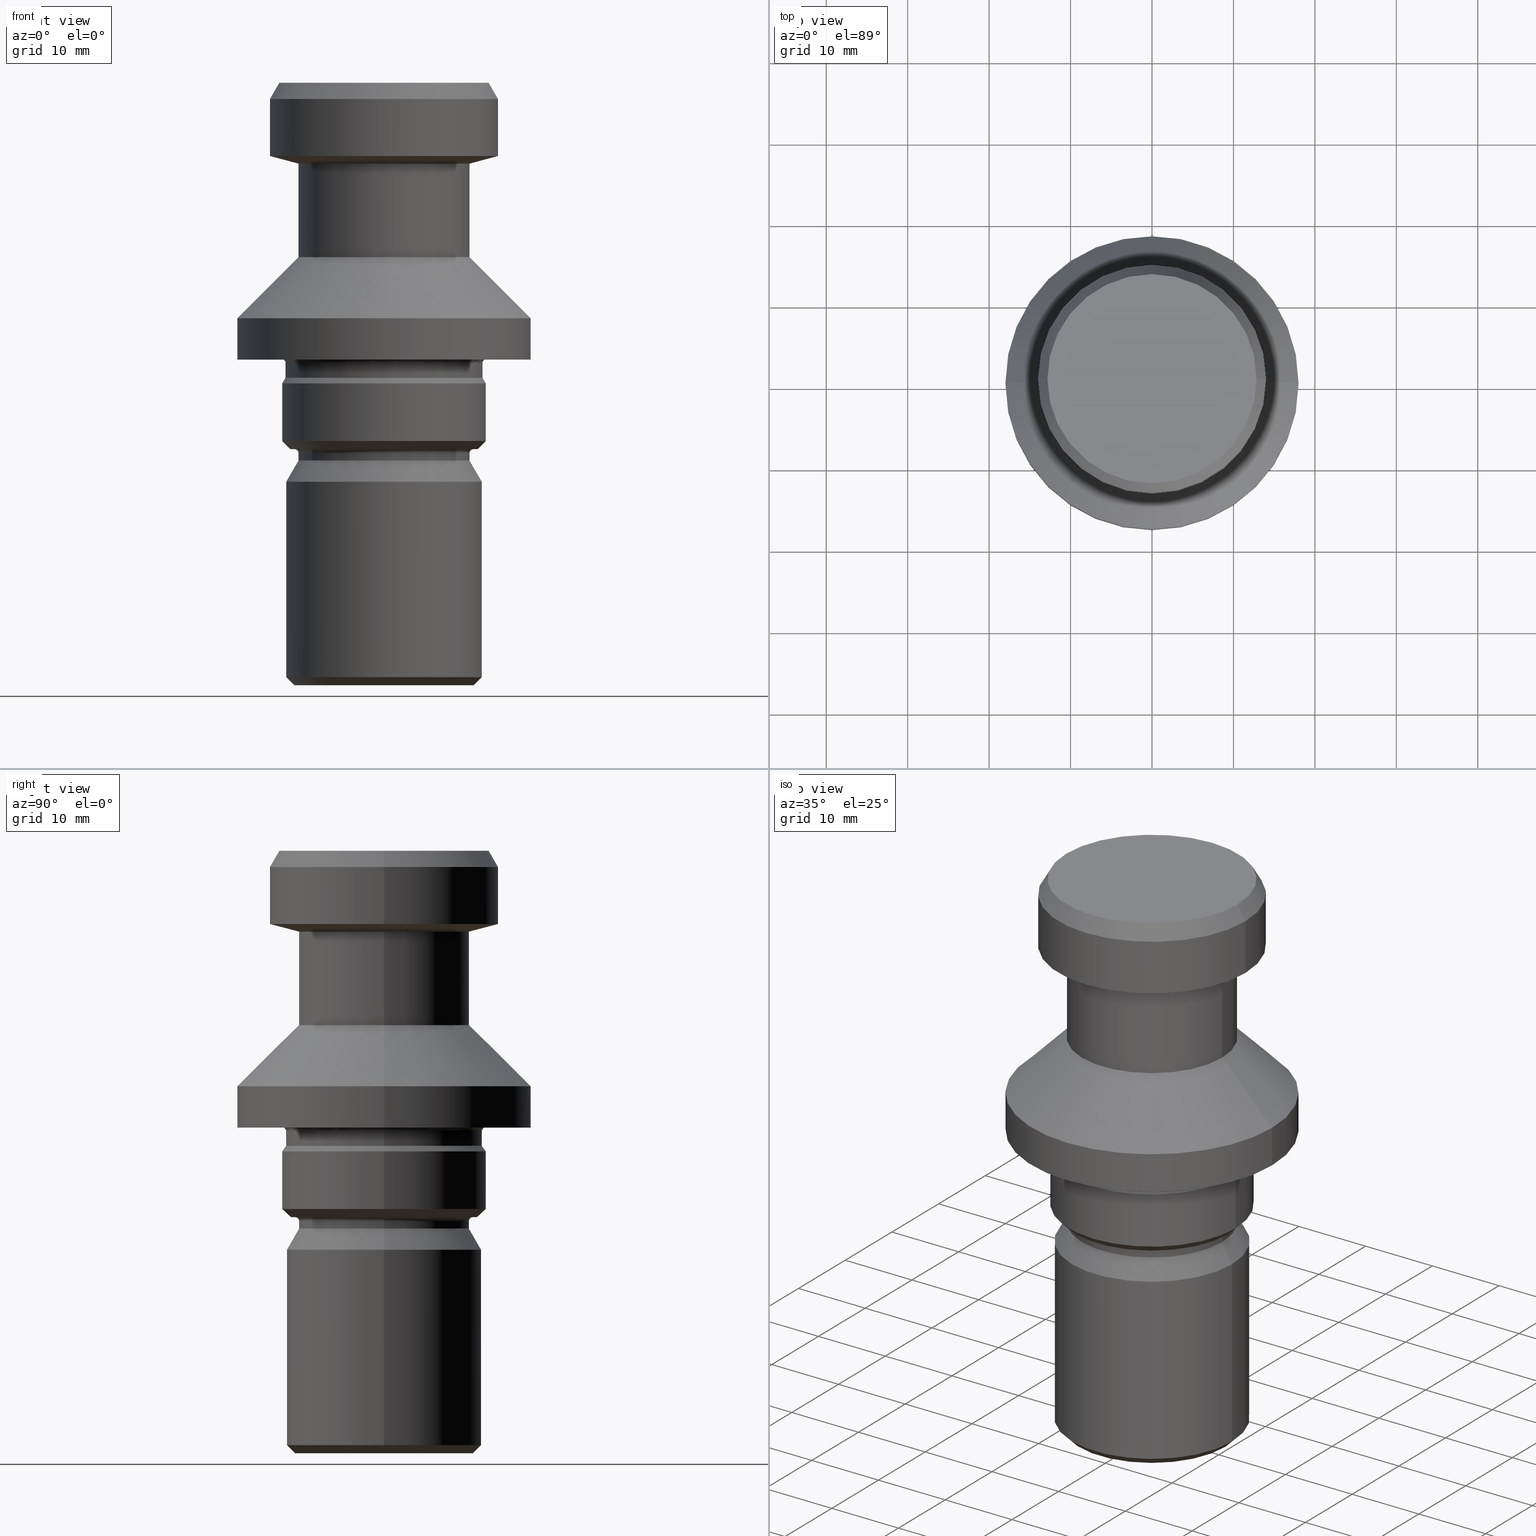
[diagram: canonical four-view strip — front | top / right | iso, engineering-drawing reading convention]
A machine part, canonical four-view strip (front | top / right | iso — engineering-drawing reading convention). The complete STEP part file that produces these views, byte-faithful:
ISO-10303-21;
HEADER;
FILE_DESCRIPTION (( 'STEP AP203' ),
    '1' );
FILE_NAME ('PS SK50 A DIN 69872 TC WITH O RING.STEP',
    '2019-04-08T09:38:23',
    ( '' ),
    ( '' ),
    'SwSTEP 2.0',
    'SolidWorks 2014',
    '' );
FILE_SCHEMA (( 'CONFIG_CONTROL_DESIGN' ));
ENDSEC;

DATA;
#1 = PERSON_AND_ORGANIZATION ( #117, #751 ) ;
#2 = LINE ( 'NONE', #312, #795 ) ;
#3 = EDGE_CURVE ( 'NONE', #123, #745, #846, .T. ) ;
#4 = DIRECTION ( 'NONE',  ( 1.000000000000000000, 0.0000000000000000000, 0.0000000000000000000 ) ) ;
#5 = FACE_OUTER_BOUND ( 'NONE', #391, .T. ) ;
#6 = ORIENTED_EDGE ( 'NONE', *, *, #286, .F. ) ;
#7 = FACE_OUTER_BOUND ( 'NONE', #711, .T. ) ;
#8 = AXIS2_PLACEMENT_3D ( 'NONE', #575, #462, #419 ) ;
#9 = AXIS2_PLACEMENT_3D ( 'NONE', #449, #397, #746 ) ;
#10 = DIRECTION ( 'NONE',  ( 1.000000000000000000, 0.0000000000000000000, 0.0000000000000000000 ) ) ;
#11 = DIRECTION ( 'NONE',  ( 1.000000000000000000, 0.0000000000000000000, 0.0000000000000000000 ) ) ;
#12 = ORIENTED_EDGE ( 'NONE', *, *, #509, .F. ) ;
#13 = ORIENTED_EDGE ( 'NONE', *, *, #642, .T. ) ;
#14 = AXIS2_PLACEMENT_3D ( 'NONE', #903, #915, #891 ) ;
#15 = ORIENTED_EDGE ( 'NONE', *, *, #665, .F. ) ;
#16 = ORIENTED_EDGE ( 'NONE', *, *, #392, .F. ) ;
#17 = DIRECTION ( 'NONE',  ( 1.000000000000000000, 0.0000000000000000000, 0.0000000000000000000 ) ) ;
#18 = ORIENTED_EDGE ( 'NONE', *, *, #239, .F. ) ;
#19 = VECTOR ( 'NONE', #54, 1000.000000000000100 ) ;
#20 = DIRECTION ( 'NONE',  ( -0.0000000000000000000, -0.0000000000000000000, 1.000000000000000000 ) ) ;
#21 = DIRECTION ( 'NONE',  ( 0.0000000000000000000, -0.0000000000000000000, 1.000000000000000000 ) ) ;
#22 = PERSON_AND_ORGANIZATION ( #117, #751 ) ;
#23 = AXIS2_PLACEMENT_3D ( 'NONE', #186, #523, #725 ) ;
#24 = VECTOR ( 'NONE', #624, 1000.000000000000000 ) ;
#25 = CARTESIAN_POINT ( 'NONE',  ( 0.0000000000000000000, 0.0000000000000000000, -9.937822173508905600 ) ) ;
#26 = EDGE_CURVE ( 'NONE', #1029, #157, #423, .T. ) ;
#27 = ORIENTED_EDGE ( 'NONE', *, *, #392, .T. ) ;
#28 = LINE ( 'NONE', #687, #245 ) ;
#29 = CYLINDRICAL_SURFACE ( 'NONE', #386, 10.50000000000000200 ) ;
#30 = DIRECTION ( 'NONE',  ( 1.000000000000000000, 0.0000000000000000000, 0.0000000000000000000 ) ) ;
#31 = CARTESIAN_POINT ( 'NONE',  ( 10.50000000000000200, 0.0000000000000000000, 0.0000000000000000000 ) ) ;
#32 = APPROVAL_ROLE ( '' ) ;
#33 = EDGE_CURVE ( 'NONE', #952, #247, #643, .T. ) ;
#34 = PRODUCT_RELATED_PRODUCT_CATEGORY ( 'detail', '', ( #890 ) ) ;
#35 = CARTESIAN_POINT ( 'NONE',  ( 0.0000000000000000000, 0.0000000000000000000, -28.92000000000000200 ) ) ;
#36 = VERTEX_POINT ( 'NONE', #645 ) ;
#37 = VECTOR ( 'NONE', #233, 999.9999999999998900 ) ;
#38 = AXIS2_PLACEMENT_3D ( 'NONE', #381, #938, #960 ) ;
#39 = EDGE_LOOP ( 'NONE', ( #844, #743 ) ) ;
#40 = VECTOR ( 'NONE', #689, 1000.000000000000000 ) ;
#41 = AXIS2_PLACEMENT_3D ( 'NONE', #763, #80, #156 ) ;
#42 = DIRECTION ( 'NONE',  ( -0.0000000000000000000, -0.0000000000000000000, 1.000000000000000000 ) ) ;
#43 = APPROVAL_ROLE ( '' ) ;
#44 = CALENDAR_DATE ( 2019, 8, 4 ) ;
#45 = LINE ( 'NONE', #226, #438 ) ;
#46 = ORIENTED_EDGE ( 'NONE', *, *, #296, .F. ) ;
#47 = DIRECTION ( 'NONE',  ( 1.000000000000000000, 0.0000000000000000000, 0.0000000000000000000 ) ) ;
#48 = DIRECTION ( 'NONE',  ( 1.000000000000000000, 0.0000000000000000000, 0.0000000000000000000 ) ) ;
#49 = ORIENTED_EDGE ( 'NONE', *, *, #564, .F. ) ;
#50 = ORIENTED_EDGE ( 'NONE', *, *, #967, .F. ) ;
#51 = CIRCLE ( 'NONE', #242, 12.10000000000000300 ) ;
#52 = ORIENTED_EDGE ( 'NONE', *, *, #1015, .F. ) ;
#53 = DIRECTION ( 'NONE',  ( -0.0000000000000000000, -0.0000000000000000000, 1.000000000000000000 ) ) ;
#54 = DIRECTION ( 'NONE',  ( 0.9659258262890677600, 1.182917971378669100E-016, -0.2588190451025224600 ) ) ;
#55 = AXIS2_PLACEMENT_3D ( 'NONE', #926, #95, #426 ) ;
#56 = DIRECTION ( 'NONE',  ( 0.0000000000000000000, 0.0000000000000000000, -1.000000000000000000 ) ) ;
#57 = AXIS2_PLACEMENT_3D ( 'NONE', #170, #21, #895 ) ;
#58 = ADVANCED_FACE ( 'NONE', ( #7 ), #1016, .T. ) ;
#59 = ORIENTED_EDGE ( 'NONE', *, *, #986, .T. ) ;
#60 = LINE ( 'NONE', #882, #37 ) ;
#61 = DIRECTION ( 'NONE',  ( -0.0000000000000000000, -0.0000000000000000000, 1.000000000000000000 ) ) ;
#62 = ORIENTED_EDGE ( 'NONE', *, *, #822, .T. ) ;
#63 = AXIS2_PLACEMENT_3D ( 'NONE', #853, #833, #927 ) ;
#64 = ADVANCED_FACE ( 'NONE', ( #403 ), #29, .T. ) ;
#65 = DIRECTION ( 'NONE',  ( -0.0000000000000000000, -0.0000000000000000000, 1.000000000000000000 ) ) ;
#66 = CIRCLE ( 'NONE', #750, 12.00000000000000000 ) ;
#67 = CARTESIAN_POINT ( 'NONE',  ( 12.00000000000000000, 0.0000000000000000000, -49.00000000000000700 ) ) ;
#68 = CARTESIAN_POINT ( 'NONE',  ( 0.0000000000000000000, 0.0000000000000000000, -44.00000000000000700 ) ) ;
#69 = CARTESIAN_POINT ( 'NONE',  ( 0.0000000000000000000, 0.0000000000000000000, -9.937822173508905600 ) ) ;
#70 = CARTESIAN_POINT ( 'NONE',  ( 0.0000000000000000000, 0.0000000000000000000, 0.0000000000000000000 ) ) ;
#71 = ADVANCED_FACE ( 'NONE', ( #194 ), #615, .F. ) ;
#72 = DIRECTION ( 'NONE',  ( -0.9659258262890677600, 0.0000000000000000000, -0.2588190451025224600 ) ) ;
#73 = DATE_AND_TIME ( #287, #494 ) ;
#74 = FACE_OUTER_BOUND ( 'NONE', #806, .T. ) ;
#75 = CARTESIAN_POINT ( 'NONE',  ( -10.50000000000000000, 1.285879139104720800E-015, -9.937822173508905600 ) ) ;
#76 = ORIENTED_EDGE ( 'NONE', *, *, #905, .F. ) ;
#77 = CIRCLE ( 'NONE', #835, 12.10000000000000300 ) ;
#78 = EDGE_LOOP ( 'NONE', ( #829, #128, #898, #367 ) ) ;
#79 = ORIENTED_EDGE ( 'NONE', *, *, #566, .F. ) ;
#80 = DIRECTION ( 'NONE',  ( 0.0000000000000000000, 0.0000000000000000000, -1.000000000000000000 ) ) ;
#81 = ORIENTED_EDGE ( 'NONE', *, *, #866, .F. ) ;
#82 = DIRECTION ( 'NONE',  ( 0.5000000000000001100, 6.123233995736767300E-017, -0.8660254037844386000 ) ) ;
#83 = EDGE_CURVE ( 'NONE', #279, #581, #217, .T. ) ;
#84 = AXIS2_PLACEMENT_3D ( 'NONE', #25, #873, #784 ) ;
#85 = DIRECTION ( 'NONE',  ( -0.0000000000000000000, -0.0000000000000000000, 1.000000000000000000 ) ) ;
#86 = CONICAL_SURFACE ( 'NONE', #803, 12.50000000000000000, 0.5235987755983012600 ) ;
#87 = ORIENTED_EDGE ( 'NONE', *, *, #935, .F. ) ;
#88 = CYLINDRICAL_SURFACE ( 'NONE', #160, 12.10000000000000300 ) ;
#89 = CARTESIAN_POINT ( 'NONE',  ( 0.0000000000000000000, 0.0000000000000000000, -34.00000000000000000 ) ) ;
#90 = VECTOR ( 'NONE', #72, 1000.000000000000100 ) ;
#91 = EDGE_CURVE ( 'NONE', #786, #603, #801, .T. ) ;
#92 = DIRECTION ( 'NONE',  ( -0.0000000000000000000, -0.0000000000000000000, 1.000000000000000000 ) ) ;
#93 = CARTESIAN_POINT ( 'NONE',  ( 0.0000000000000000000, 0.0000000000000000000, -49.00000000000000700 ) ) ;
#94 = ORIENTED_EDGE ( 'NONE', *, *, #847, .T. ) ;
#95 = DIRECTION ( 'NONE',  ( -0.0000000000000000000, -0.0000000000000000000, 1.000000000000000000 ) ) ;
#96 = APPROVAL_DATE_TIME ( #316, #324 ) ;
#97 = VECTOR ( 'NONE', #727, 999.9999999999998900 ) ;
#98 = CARTESIAN_POINT ( 'NONE',  ( 18.00000000000000000, 0.0000000000000000000, -28.92000000000000200 ) ) ;
#99 = CARTESIAN_POINT ( 'NONE',  ( 0.0000000000000000000, 0.0000000000000000000, -28.92000000000000200 ) ) ;
#100 = DIRECTION ( 'NONE',  ( 0.0000000000000000000, 0.0000000000000000000, 1.000000000000000000 ) ) ;
#101 = ORIENTED_EDGE ( 'NONE', *, *, #826, .F. ) ;
#102 = CIRCLE ( 'NONE', #261, 12.00000000000000000 ) ;
#103 = ORIENTED_EDGE ( 'NONE', *, *, #791, .F. ) ;
#104 = ORIENTED_EDGE ( 'NONE', *, *, #957, .T. ) ;
#105 = AXIS2_PLACEMENT_3D ( 'NONE', #108, #524, #141 ) ;
#106 = CARTESIAN_POINT ( 'NONE',  ( -11.00000000000000000, 1.408343819019456200E-015, -74.00000000000000000 ) ) ;
#107 = PERSON_AND_ORGANIZATION_ROLE ( 'design_owner' ) ;
#108 = CARTESIAN_POINT ( 'NONE',  ( 0.0000000000000000000, 0.0000000000000000000, -45.00000000000004300 ) ) ;
#109 = CARTESIAN_POINT ( 'NONE',  ( 12.10000000000000100, 1.506315562951244600E-015, -36.23717967697246000 ) ) ;
#110 = AXIS2_PLACEMENT_3D ( 'NONE', #483, #20, #863 ) ;
#111 = CIRCLE ( 'NONE', #857, 10.50000000000000000 ) ;
#112 = AXIS2_PLACEMENT_3D ( 'NONE', #738, #132, #463 ) ;
#113 = CIRCLE ( 'NONE', #550, 12.50000000000000000 ) ;
#114 = ORIENTED_EDGE ( 'NONE', *, *, #736, .T. ) ;
#115 = CIRCLE ( 'NONE', #112, 11.50000000000000000 ) ;
#116 = AXIS2_PLACEMENT_3D ( 'NONE', #268, #544, #507 ) ;
#117 = PERSON ( 'UNSPECIFIED', 'UNSPECIFIED', 'UNSPECIFIED', ('UNSPECIFIED'), ('UNSPECIFIED'), ('UNSPECIFIED') ) ;
#118 = CARTESIAN_POINT ( 'NONE',  ( -11.00000000000000200, 1.347111479062088600E-015, -45.00000000000004300 ) ) ;
#119 = EDGE_LOOP ( 'NONE', ( #770, #62, #548, #150 ) ) ;
#120 = APPROVAL_PERSON_ORGANIZATION ( #338, #324, #758 ) ;
#121 = CIRCLE ( 'NONE', #55, 13.23000000000000200 ) ;
#122 = LINE ( 'NONE', #129, #959 ) ;
#123 = VERTEX_POINT ( 'NONE', #1022 ) ;
#124 = ORIENTED_EDGE ( 'NONE', *, *, #266, .T. ) ;
#125 = PLANE ( 'NONE',  #38 ) ;
#126 = AXIS2_PLACEMENT_3D ( 'NONE', #199, #700, #290 ) ;
#127 = CARTESIAN_POINT ( 'NONE',  ( 0.0000000000000000000, 0.0000000000000000000, 0.0000000000000000000 ) ) ;
#128 = ORIENTED_EDGE ( 'NONE', *, *, #323, .T. ) ;
#129 = CARTESIAN_POINT ( 'NONE',  ( -12.00000000000000000, 1.469576158976823900E-015, 0.0000000000000000000 ) ) ;
#130 = CARTESIAN_POINT ( 'NONE',  ( 0.0000000000000000000, 0.0000000000000000000, -9.000000000000003600 ) ) ;
#131 = PRODUCT_DEFINITION_SHAPE ( 'NONE', 'NONE',  #270 ) ;
#132 = DIRECTION ( 'NONE',  ( -0.0000000000000000000, -0.0000000000000000000, 1.000000000000000000 ) ) ;
#133 = CIRCLE ( 'NONE', #649, 14.00000000000000000 ) ;
#134 = AXIS2_PLACEMENT_3D ( 'NONE', #368, #363, #934 ) ;
#135 = DIRECTION ( 'NONE',  ( -0.0000000000000000000, -0.0000000000000000000, 1.000000000000000000 ) ) ;
#136 = ORIENTED_EDGE ( 'NONE', *, *, #299, .F. ) ;
#137 = VERTEX_POINT ( 'NONE', #721 ) ;
#138 = VECTOR ( 'NONE', #220, 999.9999999999998900 ) ;
#139 = ORIENTED_EDGE ( 'NONE', *, *, #191, .F. ) ;
#140 = CIRCLE ( 'NONE', #331, 12.84529946162074400 ) ;
#141 = DIRECTION ( 'NONE',  ( 1.000000000000000000, 0.0000000000000000000, 0.0000000000000000000 ) ) ;
#142 = DIRECTION ( 'NONE',  ( -0.0000000000000000000, -0.0000000000000000000, 1.000000000000000000 ) ) ;
#143 = ADVANCED_FACE ( 'NONE', ( #988, #377 ), #765, .F. ) ;
#144 = DIRECTION ( 'NONE',  ( 0.5000000000000021100, 6.123233995736791900E-017, -0.8660254037844374900 ) ) ;
#145 = CARTESIAN_POINT ( 'NONE',  ( -14.00000000000000200, 1.714505518806294800E-015, -9.000000000000003600 ) ) ;
#146 = DIRECTION ( 'NONE',  ( -0.0000000000000000000, -0.0000000000000000000, 1.000000000000000000 ) ) ;
#147 = ADVANCED_FACE ( 'NONE', ( #771 ), #973, .T. ) ;
#148 = CARTESIAN_POINT ( 'NONE',  ( -11.00000000000000000, 1.347111479062088400E-015, -74.00000000000000000 ) ) ;
#149 = DIRECTION ( 'NONE',  ( -1.000000000000000000, 0.0000000000000000000, 0.0000000000000000000 ) ) ;
#150 = ORIENTED_EDGE ( 'NONE', *, *, #266, .F. ) ;
#151 = ORIENTED_EDGE ( 'NONE', *, *, #318, .T. ) ;
#152 = CIRCLE ( 'NONE', #105, 11.00000000000000200 ) ;
#153 = ADVANCED_FACE ( 'NONE', ( #571 ), #539, .T. ) ;
#154 = DIRECTION ( 'NONE',  ( 1.000000000000000000, 0.0000000000000000000, 0.0000000000000000000 ) ) ;
#155 = ORIENTED_EDGE ( 'NONE', *, *, #838, .F. ) ;
#156 = DIRECTION ( 'NONE',  ( -1.000000000000000000, 0.0000000000000000000, 0.0000000000000000000 ) ) ;
#157 = VERTEX_POINT ( 'NONE', #209 ) ;
#158 = EDGE_CURVE ( 'NONE', #1036, #157, #356, .T. ) ;
#159 = ORIENTED_EDGE ( 'NONE', *, *, #244, .T. ) ;
#160 = AXIS2_PLACEMENT_3D ( 'NONE', #1021, #163, #370 ) ;
#161 = DIRECTION ( 'NONE',  ( 1.000000000000000000, 0.0000000000000000000, 0.0000000000000000000 ) ) ;
#162 = CIRCLE ( 'NONE', #436, 18.00000000000000000 ) ;
#163 = DIRECTION ( 'NONE',  ( -0.0000000000000000000, -0.0000000000000000000, 1.000000000000000000 ) ) ;
#164 = DIRECTION ( 'NONE',  ( 1.000000000000000000, 0.0000000000000000000, 0.0000000000000000000 ) ) ;
#165 = ORIENTED_EDGE ( 'NONE', *, *, #965, .T. ) ;
#166 = CONICAL_SURFACE ( 'NONE', #250, 14.00000000000000000, 0.5235987755983005900 ) ;
#167 = AXIS2_PLACEMENT_3D ( 'NONE', #886, #467, #531 ) ;
#168 = VECTOR ( 'NONE', #766, 999.9999999999998900 ) ;
#169 = AXIS2_PLACEMENT_3D ( 'NONE', #218, #701, #210 ) ;
#170 = CARTESIAN_POINT ( 'NONE',  ( 0.0000000000000000000, 11.50000000000000000, -45.00000000000004300 ) ) ;
#171 = CARTESIAN_POINT ( 'NONE',  ( 0.0000000000000000000, 0.0000000000000000000, -36.23717967697246000 ) ) ;
#172 = ORIENTED_EDGE ( 'NONE', *, *, #459, .T. ) ;
#173 = AXIS2_PLACEMENT_3D ( 'NONE', #295, #493, #305 ) ;
#174 = ORIENTED_EDGE ( 'NONE', *, *, #838, .T. ) ;
#175 = EDGE_CURVE ( 'NONE', #614, #563, #747, .T. ) ;
#176 = DIRECTION ( 'NONE',  ( -0.0000000000000000000, -0.0000000000000000000, 1.000000000000000000 ) ) ;
#177 = ORIENTED_EDGE ( 'NONE', *, *, #225, .F. ) ;
#178 = DIRECTION ( 'NONE',  ( -0.0000000000000000000, -0.0000000000000000000, 1.000000000000000000 ) ) ;
#179 = VERTEX_POINT ( 'NONE', #647 ) ;
#180 = CYLINDRICAL_SURFACE ( 'NONE', #361, 10.50000000000000000 ) ;
#181 = CARTESIAN_POINT ( 'NONE',  ( 0.0000000000000000000, 0.0000000000000000000, 0.0000000000000000000 ) ) ;
#182 = ORIENTED_EDGE ( 'NONE', *, *, #907, .F. ) ;
#183 = AXIS2_PLACEMENT_3D ( 'NONE', #206, #346, #680 ) ;
#184 = CARTESIAN_POINT ( 'NONE',  ( 0.0000000000000000000, 0.0000000000000000000, -2.000000000000000000 ) ) ;
#185 = DATE_TIME_ROLE ( 'classification_date' ) ;
#186 = CARTESIAN_POINT ( 'NONE',  ( 0.0000000000000000000, 0.0000000000000000000, -34.34883009897343000 ) ) ;
#187 = EDGE_CURVE ( 'NONE', #786, #336, #115, .T. ) ;
#188 = ORIENTED_EDGE ( 'NONE', *, *, #767, .F. ) ;
#189 = PERSON_AND_ORGANIZATION_ROLE ( 'creator' ) ;
#190 = CALENDAR_DATE ( 2019, 8, 4 ) ;
#191 = EDGE_CURVE ( 'NONE', #202, #511, #140, .T. ) ;
#192 = VECTOR ( 'NONE', #82, 1000.000000000000000 ) ;
#193 = VECTOR ( 'NONE', #313, 1000.000000000000000 ) ;
#194 = FACE_OUTER_BOUND ( 'NONE', #450, .T. ) ;
#195 = EDGE_CURVE ( 'NONE', #500, #754, #943, .T. ) ;
#196 = AXIS2_PLACEMENT_3D ( 'NONE', #414, #852, #823 ) ;
#197 = CARTESIAN_POINT ( 'NONE',  ( 0.0000000000000000000, 0.0000000000000000000, -36.93000000000000700 ) ) ;
#198 = ORIENTED_EDGE ( 'NONE', *, *, #879, .F. ) ;
#199 = CARTESIAN_POINT ( 'NONE',  ( 0.0000000000000000000, 0.0000000000000000000, -74.00000000000000000 ) ) ;
#200 = CONICAL_SURFACE ( 'NONE', #775, 12.72940952255126300, 1.308996938995745400 ) ;
#201 = VERTEX_POINT ( 'NONE', #530 ) ;
#202 = VERTEX_POINT ( 'NONE', #259 ) ;
#203 = FACE_OUTER_BOUND ( 'NONE', #492, .T. ) ;
#204 = AXIS2_PLACEMENT_3D ( 'NONE', #880, #214, #559 ) ;
#205 = ORIENTED_EDGE ( 'NONE', *, *, #883, .T. ) ;
#206 = CARTESIAN_POINT ( 'NONE',  ( 0.0000000000000000000, 0.0000000000000000000, 0.0000000000000000000 ) ) ;
#207 = DATE_AND_TIME ( #417, #636 ) ;
#208 = FACE_OUTER_BOUND ( 'NONE', #928, .T. ) ;
#209 = CARTESIAN_POINT ( 'NONE',  ( -12.10000000000000300, 1.481822626968297700E-015, -34.34883009897343700 ) ) ;
#210 = DIRECTION ( 'NONE',  ( 1.000000000000000000, 0.0000000000000000000, 0.0000000000000000000 ) ) ;
#211 = AXIS2_PLACEMENT_3D ( 'NONE', #914, #100, #284 ) ;
#212 = ORIENTED_EDGE ( 'NONE', *, *, #944, .F. ) ;
#213 = VECTOR ( 'NONE', #837, 999.9999999999998900 ) ;
#214 = DIRECTION ( 'NONE',  ( -0.0000000000000000000, -0.0000000000000000000, 1.000000000000000000 ) ) ;
#215 = DIRECTION ( 'NONE',  ( -0.0000000000000000000, -0.0000000000000000000, 1.000000000000000000 ) ) ;
#216 = VERTEX_POINT ( 'NONE', #416 ) ;
#217 = LINE ( 'NONE', #792, #590 ) ;
#218 = CARTESIAN_POINT ( 'NONE',  ( 0.0000000000000000000, 0.0000000000000000000, 0.0000000000000000000 ) ) ;
#219 = AXIS2_PLACEMENT_3D ( 'NONE', #433, #486, #518 ) ;
#220 = DIRECTION ( 'NONE',  ( 0.5000000000000014400, 6.123233995736784500E-017, -0.8660254037844379300 ) ) ;
#221 = DIRECTION ( 'NONE',  ( 1.000000000000000000, 0.0000000000000000000, 0.0000000000000000000 ) ) ;
#222 = EDGE_CURVE ( 'NONE', #919, #952, #820, .T. ) ;
#223 = ADVANCED_FACE ( 'NONE', ( #307 ), #281, .T. ) ;
#224 = DIRECTION ( 'NONE',  ( -0.0000000000000000000, -0.0000000000000000000, 1.000000000000000000 ) ) ;
#225 = EDGE_CURVE ( 'NONE', #532, #321, #485, .T. ) ;
#226 = CARTESIAN_POINT ( 'NONE',  ( 12.50000000000000000, 1.530808498934191500E-015, -36.93000000000000700 ) ) ;
#227 = AXIS2_PLACEMENT_3D ( 'NONE', #409, #621, #623 ) ;
#228 = ORIENTED_EDGE ( 'NONE', *, *, #195, .F. ) ;
#229 = CARTESIAN_POINT ( 'NONE',  ( 0.0000000000000000000, 0.0000000000000000000, 0.0000000000000000000 ) ) ;
#230 = ADVANCED_FACE ( 'NONE', ( #513 ), #670, .T. ) ;
#231 = ORIENTED_EDGE ( 'NONE', *, *, #26, .T. ) ;
#232 = CYLINDRICAL_SURFACE ( 'NONE', #110, 12.00000000000000000 ) ;
#233 = DIRECTION ( 'NONE',  ( -0.7071067811865574500, 0.0000000000000000000, -0.7071067811865376900 ) ) ;
#234 = CARTESIAN_POINT ( 'NONE',  ( 10.50000000000000000, 0.0000000000000000000, 0.0000000000000000000 ) ) ;
#235 = ADVANCED_FACE ( 'NONE', ( #913 ), #257, .F. ) ;
#236 = AXIS2_PLACEMENT_3D ( 'NONE', #171, #42, #255 ) ;
#237 = CARTESIAN_POINT ( 'NONE',  ( 11.00000000000000200, 0.0000000000000000000, -45.50000000000003600 ) ) ;
#238 = PERSON_AND_ORGANIZATION ( #117, #751 ) ;
#239 = EDGE_CURVE ( 'NONE', #1029, #387, #698, .T. ) ;
#240 = DIRECTION ( 'NONE',  ( -1.000000000000000000, 0.0000000000000000000, -0.0000000000000000000 ) ) ;
#241 = CIRCLE ( 'NONE', #327, 11.00000000000000000 ) ;
#242 = AXIS2_PLACEMENT_3D ( 'NONE', #946, #696, #47 ) ;
#243 = EDGE_LOOP ( 'NONE', ( #830, #303, #651, #855 ) ) ;
#244 = EDGE_CURVE ( 'NONE', #684, #216, #66, .T. ) ;
#245 = VECTOR ( 'NONE', #178, 1000.000000000000000 ) ;
#246 = DIRECTION ( 'NONE',  ( -0.0000000000000000000, -0.0000000000000000000, 1.000000000000000000 ) ) ;
#247 = VERTEX_POINT ( 'NONE', #604 ) ;
#248 = DIRECTION ( 'NONE',  ( -0.0000000000000000000, -0.0000000000000000000, 1.000000000000000000 ) ) ;
#249 = ORIENTED_EDGE ( 'NONE', *, *, #446, .T. ) ;
#250 = AXIS2_PLACEMENT_3D ( 'NONE', #184, #955, #149 ) ;
#251 = DIRECTION ( 'NONE',  ( -1.000000000000000000, 0.0000000000000000000, 0.0000000000000000000 ) ) ;
#252 = FACE_OUTER_BOUND ( 'NONE', #283, .T. ) ;
#253 = DIRECTION ( 'NONE',  ( 1.224646799147353200E-016, 1.000000000000000000, 0.0000000000000000000 ) ) ;
#254 = ORIENTED_EDGE ( 'NONE', *, *, #286, .T. ) ;
#255 = DIRECTION ( 'NONE',  ( 1.000000000000000000, 0.0000000000000000000, 0.0000000000000000000 ) ) ;
#256 = ORIENTED_EDGE ( 'NONE', *, *, #834, .T. ) ;
#257 = CONICAL_SURFACE ( 'NONE', #597, 12.72940952255126300, 1.308996938995745400 ) ;
#258 = DIRECTION ( 'NONE',  ( -0.0000000000000000000, -0.0000000000000000000, 1.000000000000000000 ) ) ;
#259 = CARTESIAN_POINT ( 'NONE',  ( -12.84529946162074400, 0.0000000000000000000, 0.0000000000000000000 ) ) ;
#260 = DIRECTION ( 'NONE',  ( 0.0000000000000000000, -0.0000000000000000000, 1.000000000000000000 ) ) ;
#261 = AXIS2_PLACEMENT_3D ( 'NONE', #849, #146, #442 ) ;
#262 = ORIENTED_EDGE ( 'NONE', *, *, #991, .F. ) ;
#263 = DIRECTION ( 'NONE',  ( 1.000000000000000000, 0.0000000000000000000, 0.0000000000000000000 ) ) ;
#264 = LOCAL_TIME ( 15, 8, 23.00000000000000000, #471 ) ;
#265 = VECTOR ( 'NONE', #215, 1000.000000000000000 ) ;
#266 = EDGE_CURVE ( 'NONE', #1036, #563, #724, .T. ) ;
#267 = CYLINDRICAL_SURFACE ( 'NONE', #488, 12.50000000000000000 ) ;
#268 = CARTESIAN_POINT ( 'NONE',  ( 0.0000000000000000000, 0.0000000000000000000, -45.50000000000003600 ) ) ;
#269 = ORIENTED_EDGE ( 'NONE', *, *, #986, .F. ) ;
#270 = PRODUCT_DEFINITION ( 'UNKNOWN', '', #528, #501 ) ;
#271 = DIRECTION ( 'NONE',  ( -0.7071067811865525700, 8.659560562354994500E-017, 0.7071067811865425800 ) ) ;
#272 = DIRECTION ( 'NONE',  ( 1.000000000000000000, 0.0000000000000000000, 0.0000000000000000000 ) ) ;
#273 = CARTESIAN_POINT ( 'NONE',  ( 12.50000000000000000, 0.0000000000000000000, -44.00000000000000700 ) ) ;
#274 = AXIS2_PLACEMENT_3D ( 'NONE', #865, #260, #11 ) ;
#275 = APPLICATION_CONTEXT ( 'configuration controlled 3d designs of mechanical parts and assemblies' ) ;
#276 = ORIENTED_EDGE ( 'NONE', *, *, #401, .T. ) ;
#277 = CONICAL_SURFACE ( 'NONE', #872, 12.00000000000000000, 0.5235987755982990400 ) ;
#278 = DIRECTION ( 'NONE',  ( -0.0000000000000000000, -0.0000000000000000000, 1.000000000000000000 ) ) ;
#279 = VERTEX_POINT ( 'NONE', #382 ) ;
#280 = ORIENTED_EDGE ( 'NONE', *, *, #773, .F. ) ;
#281 = CONICAL_SURFACE ( 'NONE', #428, 11.00000000000000000, 0.7853981633974552700 ) ;
#282 = AXIS2_PLACEMENT_3D ( 'NONE', #811, #253, #739 ) ;
#283 = EDGE_LOOP ( 'NONE', ( #254, #114, #602, #854 ) ) ;
#284 = DIRECTION ( 'NONE',  ( 1.000000000000000000, 0.0000000000000000000, 0.0000000000000000000 ) ) ;
#285 = EDGE_CURVE ( 'NONE', #581, #36, #461, .T. ) ;
#286 = EDGE_CURVE ( 'NONE', #36, #581, #888, .T. ) ;
#287 = CALENDAR_DATE ( 2019, 8, 4 ) ;
#288 = LINE ( 'NONE', #474, #676 ) ;
#289 = AXIS2_PLACEMENT_3D ( 'NONE', #620, #549, #601 ) ;
#290 = DIRECTION ( 'NONE',  ( 1.000000000000000000, 0.0000000000000000000, 0.0000000000000000000 ) ) ;
#291 = DIRECTION ( 'NONE',  ( 1.000000000000000000, 0.0000000000000000000, 0.0000000000000000000 ) ) ;
#292 = FACE_OUTER_BOUND ( 'NONE', #640, .T. ) ;
#293 = ORIENTED_EDGE ( 'NONE', *, *, #1000, .F. ) ;
#294 = CARTESIAN_POINT ( 'NONE',  ( 0.0000000000000000000, 0.0000000000000000000, -46.40192378864669100 ) ) ;
#295 = CARTESIAN_POINT ( 'NONE',  ( 0.0000000000000000000, 0.0000000000000000000, 0.0000000000000000000 ) ) ;
#296 = EDGE_CURVE ( 'NONE', #387, #322, #862, .T. ) ;
#297 = CARTESIAN_POINT ( 'NONE',  ( 0.0000000000000000000, 0.0000000000000000000, -21.42000000000021500 ) ) ;
#298 = DIRECTION ( 'NONE',  ( 1.000000000000000000, 0.0000000000000000000, 0.0000000000000000000 ) ) ;
#299 = EDGE_CURVE ( 'NONE', #868, #322, #431, .T. ) ;
#300 = LINE ( 'NONE', #411, #508 ) ;
#301 = DIRECTION ( 'NONE',  ( -0.0000000000000000000, -0.0000000000000000000, 1.000000000000000000 ) ) ;
#302 = ADVANCED_FACE ( 'NONE', ( #653 ), #809, .T. ) ;
#303 = ORIENTED_EDGE ( 'NONE', *, *, #728, .T. ) ;
#304 = ORIENTED_EDGE ( 'NONE', *, *, #719, .F. ) ;
#305 = DIRECTION ( 'NONE',  ( 1.000000000000000000, 0.0000000000000000000, 0.0000000000000000000 ) ) ;
#306 = CARTESIAN_POINT ( 'NONE',  ( 0.0000000000000000000, 0.0000000000000000000, 0.0000000000000000000 ) ) ;
#307 = FACE_OUTER_BOUND ( 'NONE', #558, .T. ) ;
#308 = CARTESIAN_POINT ( 'NONE',  ( -12.00000000000000000, 1.469576158976823900E-015, -73.00000000000001400 ) ) ;
#309 = ADVANCED_FACE ( 'NONE', ( #203 ), #232, .T. ) ;
#310 = AXIS2_PLACEMENT_3D ( 'NONE', #197, #976, #968 ) ;
#311 = DIRECTION ( 'NONE',  ( -0.0000000000000000000, -0.0000000000000000000, 1.000000000000000000 ) ) ;
#312 = CARTESIAN_POINT ( 'NONE',  ( 14.00000000000000000, 0.0000000000000000000, 0.0000000000000000000 ) ) ;
#313 = DIRECTION ( 'NONE',  ( -0.5000000000000001100, 0.0000000000000000000, -0.8660254037844386000 ) ) ;
#314 = DIRECTION ( 'NONE',  ( -1.000000000000000000, 0.0000000000000000000, 0.0000000000000000000 ) ) ;
#315 = ADVANCED_FACE ( 'NONE', ( #1031 ), #390, .T. ) ;
#316 = DATE_AND_TIME ( #516, #731 ) ;
#317 = CIRCLE ( 'NONE', #126, 11.00000000000000000 ) ;
#318 = EDGE_CURVE ( 'NONE', #868, #1029, #600, .T. ) ;
#319 = CARTESIAN_POINT ( 'NONE',  ( 0.0000000000000000000, 0.0000000000000000000, 0.0000000000000000000 ) ) ;
#320 = FACE_OUTER_BOUND ( 'NONE', #497, .T. ) ;
#321 = VERTEX_POINT ( 'NONE', #662 ) ;
#322 = VERTEX_POINT ( 'NONE', #843 ) ;
#323 = EDGE_CURVE ( 'NONE', #201, #942, #999, .T. ) ;
#324 = APPROVAL ( #764, 'UNSPECIFIED' ) ;
#325 = ORIENTED_EDGE ( 'NONE', *, *, #505, .T. ) ;
#326 = CYLINDRICAL_SURFACE ( 'NONE', #692, 14.00000000000000000 ) ;
#327 = AXIS2_PLACEMENT_3D ( 'NONE', #385, #405, #4 ) ;
#328 = VERTEX_POINT ( 'NONE', #106 ) ;
#329 = ORIENTED_EDGE ( 'NONE', *, *, #631, .T. ) ;
#330 = ORIENTED_EDGE ( 'NONE', *, *, #834, .F. ) ;
#331 = AXIS2_PLACEMENT_3D ( 'NONE', #70, #527, #447 ) ;
#332 = FACE_BOUND ( 'NONE', #1039, .T. ) ;
#333 = ORIENTED_EDGE ( 'NONE', *, *, #296, .T. ) ;
#334 = VECTOR ( 'NONE', #901, 1000.000000000000000 ) ;
#335 = EDGE_LOOP ( 'NONE', ( #256, #980, #1033, #103 ) ) ;
#336 = VERTEX_POINT ( 'NONE', #644 ) ;
#337 = DIRECTION ( 'NONE',  ( 1.000000000000000000, 0.0000000000000000000, 0.0000000000000000000 ) ) ;
#338 = PERSON_AND_ORGANIZATION ( #117, #751 ) ;
#339 = CIRCLE ( 'NONE', #289, 0.5000000000000004400 ) ;
#340 = CARTESIAN_POINT ( 'NONE',  ( -10.50000000000000000, 1.285879139104720800E-015, -9.937822173508905600 ) ) ;
#341 = CIRCLE ( 'NONE', #204, 14.00000000000000000 ) ;
#342 = AXIS2_PLACEMENT_3D ( 'NONE', #714, #810, #164 ) ;
#343 = CARTESIAN_POINT ( 'NONE',  ( 12.00000000000000000, 0.0000000000000000000, 0.0000000000000000000 ) ) ;
#344 = ORIENTED_EDGE ( 'NONE', *, *, #631, .F. ) ;
#345 = DIRECTION ( 'NONE',  ( -1.000000000000000000, 0.0000000000000000000, 0.0000000000000000000 ) ) ;
#346 = DIRECTION ( 'NONE',  ( -0.0000000000000000000, -0.0000000000000000000, 1.000000000000000000 ) ) ;
#347 = AXIS2_PLACEMENT_3D ( 'NONE', #774, #224, #298 ) ;
#348 = VERTEX_POINT ( 'NONE', #451 ) ;
#349 = CARTESIAN_POINT ( 'NONE',  ( 12.84529946162074400, 1.643800502891300600E-015, 0.0000000000000000000 ) ) ;
#350 = CIRCLE ( 'NONE', #593, 11.50000000000000000 ) ;
#351 = CARTESIAN_POINT ( 'NONE',  ( 11.50000000000000000, 0.0000000000000000000, -45.00000000000003600 ) ) ;
#352 = DIRECTION ( 'NONE',  ( 1.000000000000000000, 0.0000000000000000000, 0.0000000000000000000 ) ) ;
#353 = LINE ( 'NONE', #148, #744 ) ;
#354 = CARTESIAN_POINT ( 'NONE',  ( -12.10000000000000100, 0.0000000000000000000, -36.23717967697246000 ) ) ;
#355 = ORIENTED_EDGE ( 'NONE', *, *, #91, .F. ) ;
#356 = LINE ( 'NONE', #393, #334 ) ;
#357 = ORIENTED_EDGE ( 'NONE', *, *, #719, .T. ) ;
#358 = CARTESIAN_POINT ( 'NONE',  ( 0.0000000000000000000, 0.0000000000000000000, -45.00000000000003600 ) ) ;
#359 = DIRECTION ( 'NONE',  ( 1.000000000000000000, 0.0000000000000000000, 0.0000000000000000000 ) ) ;
#360 = EDGE_LOOP ( 'NONE', ( #136, #151, #977, #757 ) ) ;
#361 = AXIS2_PLACEMENT_3D ( 'NONE', #1028, #982, #472 ) ;
#362 = VERTEX_POINT ( 'NONE', #466 ) ;
#363 = DIRECTION ( 'NONE',  ( -0.0000000000000000000, -0.0000000000000000000, 1.000000000000000000 ) ) ;
#364 = ORIENTED_EDGE ( 'NONE', *, *, #848, .T. ) ;
#365 = EDGE_LOOP ( 'NONE', ( #81, #788, #876, #376 ) ) ;
#366 = CIRCLE ( 'NONE', #310, 12.50000000000000000 ) ;
#367 = ORIENTED_EDGE ( 'NONE', *, *, #642, .F. ) ;
#368 = CARTESIAN_POINT ( 'NONE',  ( 0.0000000000000000000, 0.0000000000000000000, -45.50000000000003600 ) ) ;
#369 = DIRECTION ( 'NONE',  ( 1.000000000000000000, 0.0000000000000000000, 0.0000000000000000000 ) ) ;
#370 = DIRECTION ( 'NONE',  ( 1.000000000000000000, 0.0000000000000000000, 0.0000000000000000000 ) ) ;
#371 = EDGE_LOOP ( 'NONE', ( #617, #434, #76, #101 ) ) ;
#372 = CIRCLE ( 'NONE', #425, 10.50000000000000000 ) ;
#373 = CC_DESIGN_APPROVAL ( #324, ( #270 ) ) ;
#374 = DIRECTION ( 'NONE',  ( 1.000000000000000000, 0.0000000000000000000, 0.0000000000000000000 ) ) ;
#375 = FACE_OUTER_BOUND ( 'NONE', #389, .T. ) ;
#376 = ORIENTED_EDGE ( 'NONE', *, *, #3, .T. ) ;
#377 = FACE_BOUND ( 'NONE', #998, .T. ) ;
#378 = ADVANCED_FACE ( 'NONE', ( #630 ), #979, .T. ) ;
#379 = AXIS2_PLACEMENT_3D ( 'NONE', #306, #639, #154 ) ;
#380 = APPROVAL_STATUS ( 'not_yet_approved' ) ;
#381 = CARTESIAN_POINT ( 'NONE',  ( 0.0000000000000000000, 18.00000000000000000, -34.00000000000000000 ) ) ;
#382 = CARTESIAN_POINT ( 'NONE',  ( -10.50000000000000000, 0.0000000000000000000, -21.42000000000021500 ) ) ;
#383 = ADVANCED_FACE ( 'NONE', ( #580 ), #180, .T. ) ;
#384 = CARTESIAN_POINT ( 'NONE',  ( 18.00000000000000000, 0.0000000000000000000, 0.0000000000000000000 ) ) ;
#385 = CARTESIAN_POINT ( 'NONE',  ( 0.0000000000000000000, 0.0000000000000000000, -74.00000000000000000 ) ) ;
#386 = AXIS2_PLACEMENT_3D ( 'NONE', #181, #997, #906 ) ;
#387 = VERTEX_POINT ( 'NONE', #733 ) ;
#388 = ADVANCED_FACE ( 'NONE', ( #756 ), #557, .T. ) ;
#389 = EDGE_LOOP ( 'NONE', ( #779, #231, #1001, #538 ) ) ;
#390 = CYLINDRICAL_SURFACE ( 'NONE', #167, 14.00000000000000000 ) ;
#391 = EDGE_LOOP ( 'NONE', ( #182, #533, #887, #522 ) ) ;
#392 = EDGE_CURVE ( 'NONE', #137, #919, #152, .T. ) ;
#393 = CARTESIAN_POINT ( 'NONE',  ( -12.10000000000000300, 1.481822626968297700E-015, 0.0000000000000000000 ) ) ;
#394 = AXIS2_PLACEMENT_3D ( 'NONE', #610, #502, #992 ) ;
#395 = DIRECTION ( 'NONE',  ( -0.0000000000000000000, -0.0000000000000000000, 1.000000000000000000 ) ) ;
#396 = ORIENTED_EDGE ( 'NONE', *, *, #446, .F. ) ;
#397 = DIRECTION ( 'NONE',  ( -0.0000000000000000000, -0.0000000000000000000, 1.000000000000000000 ) ) ;
#398 = LOCAL_TIME ( 15, 8, 23.00000000000000000, #605 ) ;
#399 = AXIS2_PLACEMENT_3D ( 'NONE', #35, #135, #291 ) ;
#400 = LINE ( 'NONE', #588, #192 ) ;
#401 = EDGE_CURVE ( 'NONE', #563, #614, #366, .T. ) ;
#402 = LINE ( 'NONE', #478, #193 ) ;
#403 = FACE_OUTER_BOUND ( 'NONE', #371, .T. ) ;
#404 = DIRECTION ( 'NONE',  ( 1.000000000000000000, 0.0000000000000000000, 0.0000000000000000000 ) ) ;
#405 = DIRECTION ( 'NONE',  ( -0.0000000000000000000, -0.0000000000000000000, 1.000000000000000000 ) ) ;
#406 = ORIENTED_EDGE ( 'NONE', *, *, #318, .F. ) ;
#407 = CARTESIAN_POINT ( 'NONE',  ( -12.72940952255126300, 0.0000000000000000000, -33.86586718582890400 ) ) ;
#408 = FACE_OUTER_BOUND ( 'NONE', #365, .T. ) ;
#409 = CARTESIAN_POINT ( 'NONE',  ( 0.0000000000000000000, 0.0000000000000000000, -2.000000000000000000 ) ) ;
#410 = ORIENTED_EDGE ( 'NONE', *, *, #730, .T. ) ;
#412 = ORIENTED_EDGE ( 'NONE', *, *, #509, .T. ) ;
#411 = CARTESIAN_POINT ( 'NONE',  ( 10.50000000000000000, 0.0000000000000000000, -9.937822173508905600 ) ) ;
#413 = TOROIDAL_SURFACE ( 'NONE', #23, 12.60000000000000100, 0.4999999999999986100 ) ;
#414 = CARTESIAN_POINT ( 'NONE',  ( 0.0000000000000000000, 0.0000000000000000000, 0.0000000000000000000 ) ) ;
#415 = AXIS2_PLACEMENT_3D ( 'NONE', #984, #772, #352 ) ;
#416 = CARTESIAN_POINT ( 'NONE',  ( 12.00000000000000000, 0.0000000000000000000, -73.00000000000001400 ) ) ;
#417 = CALENDAR_DATE ( 2019, 8, 4 ) ;
#418 = FACE_OUTER_BOUND ( 'NONE', #821, .T. ) ;
#419 = DIRECTION ( 'NONE',  ( 1.000000000000000000, 0.0000000000000000000, 0.0000000000000000000 ) ) ;
#420 = ORIENTED_EDGE ( 'NONE', *, *, #401, .F. ) ;
#421 = CIRCLE ( 'NONE', #347, 10.50000000000000000 ) ;
#422 = CC_DESIGN_PERSON_AND_ORGANIZATION_ASSIGNMENT ( #916, #582, ( #270 ) ) ;
#423 = CIRCLE ( 'NONE', #63, 0.4999999999999987200 ) ;
#424 = DIRECTION ( 'NONE',  ( 0.0000000000000000000, 0.0000000000000000000, -1.000000000000000000 ) ) ;
#425 = AXIS2_PLACEMENT_3D ( 'NONE', #759, #53, #161 ) ;
#426 = DIRECTION ( 'NONE',  ( 1.000000000000000000, 0.0000000000000000000, 0.0000000000000000000 ) ) ;
#427 = FACE_OUTER_BOUND ( 'NONE', #656, .T. ) ;
#428 = AXIS2_PLACEMENT_3D ( 'NONE', #638, #667, #30 ) ;
#429 = ORIENTED_EDGE ( 'NONE', *, *, #91, .T. ) ;
#430 = AXIS2_PLACEMENT_3D ( 'NONE', #1024, #925, #439 ) ;
#431 = LINE ( 'NONE', #841, #19 ) ;
#432 = PLANE ( 'NONE',  #274 ) ;
#433 = CARTESIAN_POINT ( 'NONE',  ( 0.0000000000000000000, 0.0000000000000000000, -44.00000000000000700 ) ) ;
#434 = ORIENTED_EDGE ( 'NONE', *, *, #564, .T. ) ;
#435 = ORIENTED_EDGE ( 'NONE', *, *, #1000, .T. ) ;
#436 = AXIS2_PLACEMENT_3D ( 'NONE', #99, #484, #17 ) ;
#437 = PERSON_AND_ORGANIZATION ( #117, #751 ) ;
#438 = VECTOR ( 'NONE', #144, 1000.000000000000000 ) ;
#439 = DIRECTION ( 'NONE',  ( -1.000000000000000000, 0.0000000000000000000, 0.0000000000000000000 ) ) ;
#440 = EDGE_LOOP ( 'NONE', ( #648, #364, #13, #1023 ) ) ;
#441 = CONICAL_SURFACE ( 'NONE', #897, 14.00000000000000000, 0.5235987755983005900 ) ;
#442 = DIRECTION ( 'NONE',  ( 1.000000000000000000, 0.0000000000000000000, 0.0000000000000000000 ) ) ;
#443 = CARTESIAN_POINT ( 'NONE',  ( 0.0000000000000000000, 0.0000000000000000000, -49.00000000000000700 ) ) ;
#444 = ORIENTED_EDGE ( 'NONE', *, *, #797, .T. ) ;
#445 = VERTEX_POINT ( 'NONE', #964 ) ;
#446 = EDGE_CURVE ( 'NONE', #754, #500, #341, .T. ) ;
#447 = DIRECTION ( 'NONE',  ( 1.000000000000000000, 0.0000000000000000000, 0.0000000000000000000 ) ) ;
#448 = DATE_TIME_ROLE ( 'creation_date' ) ;
#449 = CARTESIAN_POINT ( 'NONE',  ( 0.0000000000000000000, 0.0000000000000000000, -36.93000000000000700 ) ) ;
#450 = EDGE_LOOP ( 'NONE', ( #475, #16, #678, #671 ) ) ;
#451 = CARTESIAN_POINT ( 'NONE',  ( 10.50000000000000000, 1.745121688784978200E-015, -21.42000000000021500 ) ) ;
#452 = DIRECTION ( 'NONE',  ( 1.000000000000000000, 0.0000000000000000000, 0.0000000000000000000 ) ) ;
#453 = CARTESIAN_POINT ( 'NONE',  ( 14.00000000000000000, 0.0000000000000000000, -2.000000000000000000 ) ) ;
#454 = VECTOR ( 'NONE', #1014, 1000.000000000000000 ) ;
#455 = ADVANCED_FACE ( 'NONE', ( #831 ), #520, .T. ) ;
#456 = CARTESIAN_POINT ( 'NONE',  ( -12.50000000000000000, 1.530808498934191500E-015, -36.93000000000000700 ) ) ;
#457 = DIRECTION ( 'NONE',  ( 1.000000000000000000, 0.0000000000000000000, 0.0000000000000000000 ) ) ;
#458 = CARTESIAN_POINT ( 'NONE',  ( 12.72940952255127000, 0.0000000000000000000, -33.86586718582890400 ) ) ;
#459 = EDGE_CURVE ( 'NONE', #684, #123, #122, .T. ) ;
#460 = ORIENTED_EDGE ( 'NONE', *, *, #812, .T. ) ;
#461 = CIRCLE ( 'NONE', #808, 10.50000000000000000 ) ;
#462 = DIRECTION ( 'NONE',  ( -0.0000000000000000000, -0.0000000000000000000, 1.000000000000000000 ) ) ;
#463 = DIRECTION ( 'NONE',  ( 1.000000000000000000, 0.0000000000000000000, 0.0000000000000000000 ) ) ;
#464 = ADVANCED_FACE ( 'NONE', ( #735 ), #506, .F. ) ;
#465 = DIRECTION ( 'NONE',  ( -1.000000000000000000, 0.0000000000000000000, 0.0000000000000000000 ) ) ;
#466 = CARTESIAN_POINT ( 'NONE',  ( -12.50000000000000000, 1.530808498934191500E-015, -44.00000000000000700 ) ) ;
#467 = DIRECTION ( 'NONE',  ( -0.0000000000000000000, -0.0000000000000000000, 1.000000000000000000 ) ) ;
#468 = CARTESIAN_POINT ( 'NONE',  ( 0.0000000000000000000, 0.0000000000000000000, -45.00000000000003600 ) ) ;
#469 = AXIS2_PLACEMENT_3D ( 'NONE', #551, #650, #240 ) ;
#470 = ADVANCED_FACE ( 'NONE', ( #320 ), #413, .F. ) ;
#471 = COORDINATED_UNIVERSAL_TIME_OFFSET ( 5, 30, .AHEAD. ) ;
#472 = DIRECTION ( 'NONE',  ( 1.000000000000000000, 0.0000000000000000000, 0.0000000000000000000 ) ) ;
#473 = CONICAL_SURFACE ( 'NONE', #635, 11.50000000000000000, 0.7853981633974344000 ) ;
#474 = CARTESIAN_POINT ( 'NONE',  ( 11.00000000000000000, 0.0000000000000000000, -74.00000000000000000 ) ) ;
#475 = ORIENTED_EDGE ( 'NONE', *, *, #222, .F. ) ;
#476 = FACE_OUTER_BOUND ( 'NONE', #515, .T. ) ;
#477 = ORIENTED_EDGE ( 'NONE', *, *, #244, .F. ) ;
#478 = CARTESIAN_POINT ( 'NONE',  ( -12.00000000000000000, 0.0000000000000000000, -49.00000000000000700 ) ) ;
#479 = CC_DESIGN_DATE_AND_TIME_ASSIGNMENT ( #73, #448, ( #270 ) ) ;
#480 = CARTESIAN_POINT ( 'NONE',  ( 0.0000000000000000000, 0.0000000000000000000, -33.86586718582890400 ) ) ;
#481 = AXIS2_PLACEMENT_3D ( 'NONE', #796, #1003, #1037 ) ;
#482 = CIRCLE ( 'NONE', #922, 12.10000000000000100 ) ;
#483 = CARTESIAN_POINT ( 'NONE',  ( 0.0000000000000000000, 0.0000000000000000000, 0.0000000000000000000 ) ) ;
#484 = DIRECTION ( 'NONE',  ( -0.0000000000000000000, -0.0000000000000000000, 1.000000000000000000 ) ) ;
#485 = CIRCLE ( 'NONE', #487, 14.00000000000000000 ) ;
#486 = DIRECTION ( 'NONE',  ( -0.0000000000000000000, -0.0000000000000000000, 1.000000000000000000 ) ) ;
#487 = AXIS2_PLACEMENT_3D ( 'NONE', #861, #859, #869 ) ;
#488 = AXIS2_PLACEMENT_3D ( 'NONE', #229, #311, #48 ) ;
#489 = DIRECTION ( 'NONE',  ( 1.000000000000000000, 0.0000000000000000000, 0.0000000000000000000 ) ) ;
#490 = ORIENTED_EDGE ( 'NONE', *, *, #791, .T. ) ;
#491 = DIRECTION ( 'NONE',  ( -0.0000000000000000000, -0.0000000000000000000, 1.000000000000000000 ) ) ;
#492 = EDGE_LOOP ( 'NONE', ( #681, #159, #832, #807 ) ) ;
#493 = DIRECTION ( 'NONE',  ( -0.0000000000000000000, -0.0000000000000000000, 1.000000000000000000 ) ) ;
#494 = LOCAL_TIME ( 15, 8, 23.00000000000000000, #707 ) ;
#495 = EDGE_CURVE ( 'NONE', #1011, #798, #921, .T. ) ;
#496 = LINE ( 'NONE', #562, #871 ) ;
#497 = EDGE_LOOP ( 'NONE', ( #896, #406, #410, #761 ) ) ;
#498 = ORIENTED_EDGE ( 'NONE', *, *, #83, .F. ) ;
#499 = VECTOR ( 'NONE', #554, 1000.000000000000000 ) ;
#500 = VERTEX_POINT ( 'NONE', #453 ) ;
#501 = DESIGN_CONTEXT ( 'detailed design', #526, 'design' ) ;
#502 = DIRECTION ( 'NONE',  ( -0.0000000000000000000, -0.0000000000000000000, 1.000000000000000000 ) ) ;
#503 = AXIS2_PLACEMENT_3D ( 'NONE', #319, #65, #489 ) ;
#504 =( NAMED_UNIT ( * ) PLANE_ANGLE_UNIT ( ) SI_UNIT ( $, .RADIAN. ) );
#505 = EDGE_CURVE ( 'NONE', #216, #684, #102, .T. ) ;
#506 = PLANE ( 'NONE',  #469 ) ;
#507 = DIRECTION ( 'NONE',  ( 1.000000000000000000, 0.0000000000000000000, 0.0000000000000000000 ) ) ;
#508 = VECTOR ( 'NONE', #878, 999.9999999999998900 ) ;
#509 = EDGE_CURVE ( 'NONE', #348, #595, #713, .T. ) ;
#510 = CARTESIAN_POINT ( 'NONE',  ( 11.50000000000000000, 0.0000000000000000000, -45.00000000000003600 ) ) ;
#511 = VERTEX_POINT ( 'NONE', #349 ) ;
#512 = FACE_OUTER_BOUND ( 'NONE', #782, .T. ) ;
#513 = FACE_OUTER_BOUND ( 'NONE', #629, .T. ) ;
#514 = DIRECTION ( 'NONE',  ( -0.0000000000000000000, -0.0000000000000000000, 1.000000000000000000 ) ) ;
#515 = EDGE_LOOP ( 'NONE', ( #262, #682, #460, #420 ) ) ;
#516 = CALENDAR_DATE ( 2019, 8, 4 ) ;
#517 = LINE ( 'NONE', #75, #97 ) ;
#518 = DIRECTION ( 'NONE',  ( 1.000000000000000000, 0.0000000000000000000, 0.0000000000000000000 ) ) ;
#519 = ORIENTED_EDGE ( 'NONE', *, *, #866, .T. ) ;
#520 = CYLINDRICAL_SURFACE ( 'NONE', #415, 18.00000000000000000 ) ;
#521 = EDGE_LOOP ( 'NONE', ( #49, #608, #718, #900 ) ) ;
#522 = ORIENTED_EDGE ( 'NONE', *, *, #572, .F. ) ;
#523 = DIRECTION ( 'NONE',  ( -0.0000000000000000000, -0.0000000000000000000, 1.000000000000000000 ) ) ;
#524 = DIRECTION ( 'NONE',  ( -0.0000000000000000000, -0.0000000000000000000, 1.000000000000000000 ) ) ;
#525 = CARTESIAN_POINT ( 'NONE',  ( 0.0000000000000000000, 0.0000000000000000000, -28.92000000000000200 ) ) ;
#526 = APPLICATION_CONTEXT ( 'configuration controlled 3d designs of mechanical parts and assemblies' ) ;
#527 = DIRECTION ( 'NONE',  ( -0.0000000000000000000, -0.0000000000000000000, 1.000000000000000000 ) ) ;
#528 = PRODUCT_DEFINITION_FORMATION_WITH_SPECIFIED_SOURCE ( 'ANY', '', #890, .NOT_KNOWN. ) ;
#529 = FACE_OUTER_BOUND ( 'NONE', #579, .T. ) ;
#530 = CARTESIAN_POINT ( 'NONE',  ( -18.00000000000000000, 2.204364238465235400E-015, -34.00000000000000000 ) ) ;
#531 = DIRECTION ( 'NONE',  ( 1.000000000000000000, 0.0000000000000000000, 0.0000000000000000000 ) ) ;
#532 = VERTEX_POINT ( 'NONE', #145 ) ;
#533 = ORIENTED_EDGE ( 'NONE', *, *, #655, .T. ) ;
#534 = FACE_OUTER_BOUND ( 'NONE', #1038, .T. ) ;
#535 = AXIS2_PLACEMENT_3D ( 'NONE', #127, #989, #272 ) ;
#536 = CARTESIAN_POINT ( 'NONE',  ( 12.10000000000000300, 0.0000000000000000000, 0.0000000000000000000 ) ) ;
#537 = DIRECTION ( 'NONE',  ( -0.0000000000000000000, -0.0000000000000000000, 1.000000000000000000 ) ) ;
#538 = ORIENTED_EDGE ( 'NONE', *, *, #730, .F. ) ;
#539 = CYLINDRICAL_SURFACE ( 'NONE', #173, 18.00000000000000000 ) ;
#540 = EDGE_CURVE ( 'NONE', #157, #798, #77, .T. ) ;
#541 = ADVANCED_FACE ( 'NONE', ( #292 ), #441, .T. ) ;
#542 = DIRECTION ( 'NONE',  ( 1.000000000000000000, 0.0000000000000000000, 0.0000000000000000000 ) ) ;
#543 = CARTESIAN_POINT ( 'NONE',  ( 0.0000000000000000000, 0.0000000000000000000, -2.000000000000000000 ) ) ;
#544 = DIRECTION ( 'NONE',  ( -0.0000000000000000000, -0.0000000000000000000, 1.000000000000000000 ) ) ;
#545 = UNCERTAINTY_MEASURE_WITH_UNIT (LENGTH_MEASURE( 1.000000000000000100E-005 ), #932, 'distance_accuracy_value', 'NONE');
#546 = AXIS2_PLACEMENT_3D ( 'NONE', #924, #813, #877 ) ;
#547 = ADVANCED_FACE ( 'NONE', ( #476 ), #267, .T. ) ;
#548 = ORIENTED_EDGE ( 'NONE', *, *, #175, .T. ) ;
#549 = DIRECTION ( 'NONE',  ( 0.0000000000000000000, -1.000000000000000000, 0.0000000000000000000 ) ) ;
#550 = AXIS2_PLACEMENT_3D ( 'NONE', #68, #246, #263 ) ;
#551 = CARTESIAN_POINT ( 'NONE',  ( 0.0000000000000000000, 12.84529946162074400, 0.0000000000000000000 ) ) ;
#552 = PERSON_AND_ORGANIZATION ( #117, #751 ) ;
#553 = CYLINDRICAL_SURFACE ( 'NONE', #183, 10.50000000000000000 ) ;
#554 = DIRECTION ( 'NONE',  ( -0.0000000000000000000, -0.0000000000000000000, 1.000000000000000000 ) ) ;
#555 = ADVANCED_FACE ( 'NONE', ( #679 ), #641, .T. ) ;
#556 = ORIENTED_EDGE ( 'NONE', *, *, #822, .F. ) ;
#557 = CYLINDRICAL_SURFACE ( 'NONE', #196, 10.50000000000000200 ) ;
#558 = EDGE_LOOP ( 'NONE', ( #15, #174, #490, #477 ) ) ;
#559 = DIRECTION ( 'NONE',  ( 1.000000000000000000, 0.0000000000000000000, 0.0000000000000000000 ) ) ;
#560 = DIRECTION ( 'NONE',  ( -0.0000000000000000000, -0.0000000000000000000, 1.000000000000000000 ) ) ;
#561 = DIRECTION ( 'NONE',  ( 1.000000000000000000, 0.0000000000000000000, 0.0000000000000000000 ) ) ;
#562 = CARTESIAN_POINT ( 'NONE',  ( 12.50000000000000000, 0.0000000000000000000, 0.0000000000000000000 ) ) ;
#563 = VERTEX_POINT ( 'NONE', #456 ) ;
#564 = EDGE_CURVE ( 'NONE', #445, #952, #28, .T. ) ;
#565 = CIRCLE ( 'NONE', #535, 12.84529946162074400 ) ;
#566 = EDGE_CURVE ( 'NONE', #216, #745, #845, .T. ) ;
#567 = ORIENTED_EDGE ( 'NONE', *, *, #576, .F. ) ;
#568 = EDGE_LOOP ( 'NONE', ( #498, #165, #444, #674 ) ) ;
#569 = VECTOR ( 'NONE', #301, 1000.000000000000000 ) ;
#570 = ORIENTED_EDGE ( 'NONE', *, *, #83, .T. ) ;
#571 = FACE_OUTER_BOUND ( 'NONE', #78, .T. ) ;
#572 = EDGE_CURVE ( 'NONE', #202, #754, #874, .T. ) ;
#573 = DIRECTION ( 'NONE',  ( -0.0000000000000000000, -0.0000000000000000000, 1.000000000000000000 ) ) ;
#574 = DIRECTION ( 'NONE',  ( 1.000000000000000000, 0.0000000000000000000, 0.0000000000000000000 ) ) ;
#575 = CARTESIAN_POINT ( 'NONE',  ( 0.0000000000000000000, 0.0000000000000000000, -74.00000000000000000 ) ) ;
#576 = EDGE_CURVE ( 'NONE', #798, #157, #51, .T. ) ;
#577 = ORIENTED_EDGE ( 'NONE', *, *, #728, .F. ) ;
#578 = ORIENTED_EDGE ( 'NONE', *, *, #892, .F. ) ;
#579 = EDGE_LOOP ( 'NONE', ( #1030, #519, #875, #742 ) ) ;
#580 = FACE_OUTER_BOUND ( 'NONE', #568, .T. ) ;
#581 = VERTEX_POINT ( 'NONE', #340 ) ;
#582 = PERSON_AND_ORGANIZATION_ROLE ( 'creator' ) ;
#583 = FACE_OUTER_BOUND ( 'NONE', #1005, .T. ) ;
#584 = ORIENTED_EDGE ( 'NONE', *, *, #187, .F. ) ;
#585 = APPROVAL ( #824, 'UNSPECIFIED' ) ;
#586 = CARTESIAN_POINT ( 'NONE',  ( 0.0000000000000000000, 0.0000000000000000000, -73.00000000000001400 ) ) ;
#587 = ORIENTED_EDGE ( 'NONE', *, *, #187, .T. ) ;
#588 = CARTESIAN_POINT ( 'NONE',  ( 12.00000000000000000, 1.469576158976823900E-015, -49.00000000000000700 ) ) ;
#589 = TOROIDAL_SURFACE ( 'NONE', #818, 12.60000000000000100, 0.4999999999999986100 ) ;
#590 = VECTOR ( 'NONE', #974, 1000.000000000000000 ) ;
#591 = CLOSED_SHELL ( 'NONE', ( #619, #940, #1019, #704, #856, #153, #1025, #633, #625, #950, #864, #777, #867, #64, #958, #147, #378, #781, #223, #309, #1034, #388, #71, #143, #230, #547, #302, #699, #470, #235, #690, #455, #555, #383, #58, #315, #541, #464 ) ) ;
#592 = DIRECTION ( 'NONE',  ( 0.0000000000000000000, 0.0000000000000000000, -1.000000000000000000 ) ) ;
#593 = AXIS2_PLACEMENT_3D ( 'NONE', #468, #395, #628 ) ;
#594 = CARTESIAN_POINT ( 'NONE',  ( 0.0000000000000000000, 0.0000000000000000000, -36.93000000000000700 ) ) ;
#595 = VERTEX_POINT ( 'NONE', #98 ) ;
#596 = PERSON_AND_ORGANIZATION_ROLE ( 'design_supplier' ) ;
#597 = AXIS2_PLACEMENT_3D ( 'NONE', #790, #851, #616 ) ;
#598 = AXIS2_PLACEMENT_3D ( 'NONE', #954, #686, #369 ) ;
#599 = ORIENTED_EDGE ( 'NONE', *, *, #225, .T. ) ;
#600 = CIRCLE ( 'NONE', #985, 12.72940952255126300 ) ;
#601 = DIRECTION ( 'NONE',  ( 0.0000000000000000000, 0.0000000000000000000, -1.000000000000000000 ) ) ;
#602 = ORIENTED_EDGE ( 'NONE', *, *, #949, .F. ) ;
#603 = VERTEX_POINT ( 'NONE', #273 ) ;
#604 = CARTESIAN_POINT ( 'NONE',  ( 10.50000000000000400, 0.0000000000000000000, -45.50000000000003600 ) ) ;
#605 = COORDINATED_UNIVERSAL_TIME_OFFSET ( 5, 30, .AHEAD. ) ;
#606 = TOROIDAL_SURFACE ( 'NONE', #394, 11.00000000000000200, 0.4999999999999970000 ) ;
#607 = AXIS2_PLACEMENT_3D ( 'NONE', #294, #963, #374 ) ;
#608 = ORIENTED_EDGE ( 'NONE', *, *, #672, .T. ) ;
#609 = CARTESIAN_POINT ( 'NONE',  ( -18.00000000000000000, 2.204364238465235400E-015, 0.0000000000000000000 ) ) ;
#610 = CARTESIAN_POINT ( 'NONE',  ( 0.0000000000000000000, 0.0000000000000000000, -45.50000000000003600 ) ) ;
#611 = CARTESIAN_POINT ( 'NONE',  ( 0.0000000000000000000, 0.0000000000000000000, -33.86586718582890400 ) ) ;
#612 = EDGE_CURVE ( 'NONE', #179, #445, #421, .T. ) ;
#613 = CYLINDRICAL_SURFACE ( 'NONE', #503, 12.10000000000000300 ) ;
#614 = VERTEX_POINT ( 'NONE', #776 ) ;
#615 = TOROIDAL_SURFACE ( 'NONE', #134, 11.00000000000000200, 0.4999999999999970000 ) ;
#616 = DIRECTION ( 'NONE',  ( -1.000000000000000000, 0.0000000000000000000, 0.0000000000000000000 ) ) ;
#617 = ORIENTED_EDGE ( 'NONE', *, *, #612, .T. ) ;
#618 = EDGE_CURVE ( 'NONE', #445, #123, #402, .T. ) ;
#619 = ADVANCED_FACE ( 'NONE', ( #5 ), #166, .T. ) ;
#620 = CARTESIAN_POINT ( 'NONE',  ( 12.60000000000000100, 0.0000000000000000000, -34.34883009897343000 ) ) ;
#621 = DIRECTION ( 'NONE',  ( -0.0000000000000000000, -0.0000000000000000000, 1.000000000000000000 ) ) ;
#622 = CONICAL_SURFACE ( 'NONE', #752, 10.50000000000000000, 1.308996938995754300 ) ;
#623 = DIRECTION ( 'NONE',  ( 1.000000000000000000, 0.0000000000000000000, 0.0000000000000000000 ) ) ;
#624 = DIRECTION ( 'NONE',  ( -0.0000000000000000000, -0.0000000000000000000, 1.000000000000000000 ) ) ;
#625 = ADVANCED_FACE ( 'NONE', ( #1012 ), #613, .T. ) ;
#626 = CARTESIAN_POINT ( 'NONE',  ( -10.50000000000000400, 1.285879139104721200E-015, -45.50000000000003600 ) ) ;
#627 = ORIENTED_EDGE ( 'NONE', *, *, #949, .T. ) ;
#628 = DIRECTION ( 'NONE',  ( 1.000000000000000000, 0.0000000000000000000, 0.0000000000000000000 ) ) ;
#629 = EDGE_LOOP ( 'NONE', ( #50, #902, #429, #280 ) ) ;
#630 = FACE_OUTER_BOUND ( 'NONE', #335, .T. ) ;
#631 = EDGE_CURVE ( 'NONE', #919, #137, #799, .T. ) ;
#632 = DIRECTION ( 'NONE',  ( -0.0000000000000000000, -0.0000000000000000000, 1.000000000000000000 ) ) ;
#633 = ADVANCED_FACE ( 'NONE', ( #375 ), #589, .F. ) ;
#634 = DIRECTION ( 'NONE',  ( 1.000000000000000000, 0.0000000000000000000, 0.0000000000000000000 ) ) ;
#635 = AXIS2_PLACEMENT_3D ( 'NONE', #358, #910, #457 ) ;
#636 = LOCAL_TIME ( 15, 8, 23.00000000000000000, #836 ) ;
#637 = CIRCLE ( 'NONE', #948, 18.00000000000000000 ) ;
#638 = CARTESIAN_POINT ( 'NONE',  ( 0.0000000000000000000, 0.0000000000000000000, -74.00000000000000000 ) ) ;
#639 = DIRECTION ( 'NONE',  ( -0.0000000000000000000, -0.0000000000000000000, 1.000000000000000000 ) ) ;
#640 = EDGE_LOOP ( 'NONE', ( #981, #139, #729, #249 ) ) ;
#641 = CONICAL_SURFACE ( 'NONE', #430, 18.00000000000000000, 0.7853981633974621600 ) ;
#642 = EDGE_CURVE ( 'NONE', #780, #595, #768, .T. ) ;
#643 = CIRCLE ( 'NONE', #116, 10.50000000000000400 ) ;
#644 = CARTESIAN_POINT ( 'NONE',  ( -11.50000000000000000, 1.469576158976823900E-015, -45.00000000000003600 ) ) ;
#645 = CARTESIAN_POINT ( 'NONE',  ( 10.50000000000000000, 0.0000000000000000000, -9.937822173508905600 ) ) ;
#646 = CC_DESIGN_APPROVAL ( #585, ( #528 ) ) ;
#647 = CARTESIAN_POINT ( 'NONE',  ( 10.50000000000000000, 1.377727649040772400E-015, -46.40192378864669100 ) ) ;
#648 = ORIENTED_EDGE ( 'NONE', *, *, #323, .F. ) ;
#649 = AXIS2_PLACEMENT_3D ( 'NONE', #130, #514, #708 ) ;
#650 = DIRECTION ( 'NONE',  ( 0.0000000000000000000, 0.0000000000000000000, -1.000000000000000000 ) ) ;
#651 = ORIENTED_EDGE ( 'NONE', *, *, #495, .T. ) ;
#652 = DIRECTION ( 'NONE',  ( 0.0000000000000000000, 0.0000000000000000000, -1.000000000000000000 ) ) ;
#653 = FACE_OUTER_BOUND ( 'NONE', #715, .T. ) ;
#654 = ORIENTED_EDGE ( 'NONE', *, *, #722, .T. ) ;
#655 = EDGE_CURVE ( 'NONE', #511, #500, #817, .T. ) ;
#656 = EDGE_LOOP ( 'NONE', ( #94, #789, #46, #18 ) ) ;
#657 = EDGE_LOOP ( 'NONE', ( #325, #172, #188, #79 ) ) ;
#658 = APPROVAL_DATE_TIME ( #870, #585 ) ;
#659 = LINE ( 'NONE', #31, #24 ) ;
#660 = ORIENTED_EDGE ( 'NONE', *, *, #668, .T. ) ;
#661 = VECTOR ( 'NONE', #939, 1000.000000000000000 ) ;
#662 = CARTESIAN_POINT ( 'NONE',  ( 14.00000000000000200, 0.0000000000000000000, -9.000000000000003600 ) ) ;
#663 = ORIENTED_EDGE ( 'NONE', *, *, #991, .T. ) ;
#664 = CARTESIAN_POINT ( 'NONE',  ( 18.00000000000000000, 0.0000000000000000000, -34.00000000000000000 ) ) ;
#665 = EDGE_CURVE ( 'NONE', #328, #684, #353, .T. ) ;
#666 = MECHANICAL_CONTEXT ( 'NONE', #275, 'mechanical' ) ;
#667 = DIRECTION ( 'NONE',  ( -0.0000000000000000000, -0.0000000000000000000, 1.000000000000000000 ) ) ;
#668 = EDGE_CURVE ( 'NONE', #942, #595, #972, .T. ) ;
#669 = CC_DESIGN_PERSON_AND_ORGANIZATION_ASSIGNMENT ( #552, #107, ( #890 ) ) ;
#670 = CONICAL_SURFACE ( 'NONE', #546, 11.50000000000000000, 0.7853981633974344000 ) ;
#671 = ORIENTED_EDGE ( 'NONE', *, *, #905, .T. ) ;
#672 = EDGE_CURVE ( 'NONE', #445, #179, #987, .T. ) ;
#673 = DIRECTION ( 'NONE',  ( 0.0000000000000000000, 0.0000000000000000000, -1.000000000000000000 ) ) ;
#674 = ORIENTED_EDGE ( 'NONE', *, *, #285, .F. ) ;
#675 = APPROVAL_PERSON_ORGANIZATION ( #893, #585, #43 ) ;
#676 = VECTOR ( 'NONE', #1026, 999.9999999999998900 ) ;
#677 =( NAMED_UNIT ( * ) SI_UNIT ( $, .STERADIAN. ) SOLID_ANGLE_UNIT ( ) );
#678 = ORIENTED_EDGE ( 'NONE', *, *, #944, .T. ) ;
#679 = FACE_OUTER_BOUND ( 'NONE', #706, .T. ) ;
#680 = DIRECTION ( 'NONE',  ( 1.000000000000000000, 0.0000000000000000000, 0.0000000000000000000 ) ) ;
#681 = ORIENTED_EDGE ( 'NONE', *, *, #459, .F. ) ;
#682 = ORIENTED_EDGE ( 'NONE', *, *, #773, .T. ) ;
#683 = CARTESIAN_POINT ( 'NONE',  ( 18.00000000000000000, 2.204364238465235400E-015, -28.92000000000000200 ) ) ;
#684 = VERTEX_POINT ( 'NONE', #308 ) ;
#685 = CARTESIAN_POINT ( 'NONE',  ( 0.0000000000000000000, 0.0000000000000000000, -45.00000000000004300 ) ) ;
#686 = DIRECTION ( 'NONE',  ( -0.0000000000000000000, -0.0000000000000000000, 1.000000000000000000 ) ) ;
#687 = CARTESIAN_POINT ( 'NONE',  ( -10.50000000000000200, 1.285879139104721000E-015, 0.0000000000000000000 ) ) ;
#688 = CC_DESIGN_PERSON_AND_ORGANIZATION_ASSIGNMENT ( #437, #189, ( #528 ) ) ;
#689 = DIRECTION ( 'NONE',  ( -0.5000000000000021100, 0.0000000000000000000, -0.8660254037844374900 ) ) ;
#690 = ADVANCED_FACE ( 'NONE', ( #534, #332 ), #125, .F. ) ;
#691 = LINE ( 'NONE', #842, #936 ) ;
#692 = AXIS2_PLACEMENT_3D ( 'NONE', #1020, #995, #574 ) ;
#693 = DIRECTION ( 'NONE',  ( 0.7071067811865574500, 8.659560562355054900E-017, -0.7071067811865376900 ) ) ;
#694 = DIRECTION ( 'NONE',  ( 0.0000000000000000000, 0.0000000000000000000, -1.000000000000000000 ) ) ;
#695 = EDGE_LOOP ( 'NONE', ( #587, #971, #304, #355 ) ) ;
#696 = DIRECTION ( 'NONE',  ( -0.0000000000000000000, -0.0000000000000000000, 1.000000000000000000 ) ) ;
#697 = CARTESIAN_POINT ( 'NONE',  ( 0.0000000000000000000, 0.0000000000000000000, -34.00000000000000000 ) ) ;
#698 = LINE ( 'NONE', #407, #90 ) ;
#699 = ADVANCED_FACE ( 'NONE', ( #941 ), #88, .T. ) ;
#700 = DIRECTION ( 'NONE',  ( -0.0000000000000000000, -0.0000000000000000000, 1.000000000000000000 ) ) ;
#701 = DIRECTION ( 'NONE',  ( -0.0000000000000000000, -0.0000000000000000000, 1.000000000000000000 ) ) ;
#702 = CARTESIAN_POINT ( 'NONE',  ( -12.50000000000000000, 0.0000000000000000000, -36.93000000000000700 ) ) ;
#703 = DIRECTION ( 'NONE',  ( -0.0000000000000000000, -0.0000000000000000000, 1.000000000000000000 ) ) ;
#704 = ADVANCED_FACE ( 'NONE', ( #512 ), #553, .T. ) ;
#705 = CARTESIAN_POINT ( 'NONE',  ( -12.50000000000000000, 1.530808498934191500E-015, 0.0000000000000000000 ) ) ;
#706 = EDGE_LOOP ( 'NONE', ( #12, #1004, #435, #660 ) ) ;
#707 = COORDINATED_UNIVERSAL_TIME_OFFSET ( 5, 30, .AHEAD. ) ;
#708 = DIRECTION ( 'NONE',  ( 1.000000000000000000, 0.0000000000000000000, 0.0000000000000000000 ) ) ;
#709 = FACE_OUTER_BOUND ( 'NONE', #695, .T. ) ;
#710 = CARTESIAN_POINT ( 'NONE',  ( -12.72940952255127000, 1.558903062682825000E-015, -33.86586718582890400 ) ) ;
#711 = EDGE_LOOP ( 'NONE', ( #793, #804, #104, #177 ) ) ;
#712 = ORIENTED_EDGE ( 'NONE', *, *, #879, .T. ) ;
#713 = LINE ( 'NONE', #683, #899 ) ;
#714 = CARTESIAN_POINT ( 'NONE',  ( 0.0000000000000000000, 0.0000000000000000000, -49.00000000000000700 ) ) ;
#715 = EDGE_LOOP ( 'NONE', ( #556, #577, #124, #276 ) ) ;
#716 = DIRECTION ( 'NONE',  ( 0.0000000000000000000, -1.000000000000000000, 0.0000000000000000000 ) ) ;
#717 = AXIS2_PLACEMENT_3D ( 'NONE', #685, #703, #404 ) ;
#718 = ORIENTED_EDGE ( 'NONE', *, *, #826, .T. ) ;
#719 = EDGE_CURVE ( 'NONE', #603, #362, #113, .T. ) ;
#720 = LINE ( 'NONE', #755, #881 ) ;
#721 = CARTESIAN_POINT ( 'NONE',  ( 11.00000000000000200, 0.0000000000000000000, -45.00000000000004300 ) ) ;
#722 = EDGE_CURVE ( 'NONE', #322, #387, #121, .T. ) ;
#723 = ORIENTED_EDGE ( 'NONE', *, *, #175, .F. ) ;
#724 = LINE ( 'NONE', #702, #40 ) ;
#725 = DIRECTION ( 'NONE',  ( 1.000000000000000000, 0.0000000000000000000, 0.0000000000000000000 ) ) ;
#726 = CC_DESIGN_APPROVAL ( #969, ( #800 ) ) ;
#727 = DIRECTION ( 'NONE',  ( -0.9659258262890702000, 1.182917971378672300E-016, 0.2588190451025139100 ) ) ;
#728 = EDGE_CURVE ( 'NONE', #1036, #1011, #732, .T. ) ;
#729 = ORIENTED_EDGE ( 'NONE', *, *, #572, .T. ) ;
#730 = EDGE_CURVE ( 'NONE', #868, #798, #339, .T. ) ;
#731 = LOCAL_TIME ( 15, 8, 23.00000000000000000, #953 ) ;
#732 = CIRCLE ( 'NONE', #236, 12.10000000000000100 ) ;
#733 = CARTESIAN_POINT ( 'NONE',  ( -13.23000000000000200, 0.0000000000000000000, -34.00000000000000000 ) ) ;
#734 = DIRECTION ( 'NONE',  ( -0.0000000000000000000, -0.0000000000000000000, 1.000000000000000000 ) ) ;
#735 = FACE_OUTER_BOUND ( 'NONE', #39, .T. ) ;
#736 = EDGE_CURVE ( 'NONE', #581, #532, #517, .T. ) ;
#737 = ORIENTED_EDGE ( 'NONE', *, *, #892, .T. ) ;
#738 = CARTESIAN_POINT ( 'NONE',  ( 0.0000000000000000000, 0.0000000000000000000, -45.00000000000003600 ) ) ;
#739 = DIRECTION ( 'NONE',  ( -1.000000000000000000, 1.224646799147353900E-016, 0.0000000000000000000 ) ) ;
#740 = FACE_OUTER_BOUND ( 'NONE', #961, .T. ) ;
#741 = CC_DESIGN_PERSON_AND_ORGANIZATION_ASSIGNMENT ( #238, #596, ( #528 ) ) ;
#742 = ORIENTED_EDGE ( 'NONE', *, *, #618, .F. ) ;
#743 = ORIENTED_EDGE ( 'NONE', *, *, #907, .T. ) ;
#744 = VECTOR ( 'NONE', #271, 999.9999999999998900 ) ;
#745 = VERTEX_POINT ( 'NONE', #67 ) ;
#746 = DIRECTION ( 'NONE',  ( 1.000000000000000000, 0.0000000000000000000, 0.0000000000000000000 ) ) ;
#747 = CIRCLE ( 'NONE', #9, 12.50000000000000000 ) ;
#748 = DIRECTION ( 'NONE',  ( -0.0000000000000000000, -0.0000000000000000000, 1.000000000000000000 ) ) ;
#749 = AXIS2_PLACEMENT_3D ( 'NONE', #237, #716, #673 ) ;
#750 = AXIS2_PLACEMENT_3D ( 'NONE', #586, #61, #221 ) ;
#751 = ORGANIZATION ( 'UNSPECIFIED', 'UNSPECIFIED', '' ) ;
#752 = AXIS2_PLACEMENT_3D ( 'NONE', #69, #560, #947 ) ;
#753 = ADVANCED_BREP_SHAPE_REPRESENTATION ( 'PS SK50 A DIN 69872 TC WITH O RING', ( #931, #211 ), #885 ) ;
#754 = VERTEX_POINT ( 'NONE', #970 ) ;
#755 = CARTESIAN_POINT ( 'NONE',  ( -14.00000000000000000, 1.714505518806294600E-015, 0.0000000000000000000 ) ) ;
#756 = FACE_OUTER_BOUND ( 'NONE', #521, .T. ) ;
#757 = ORIENTED_EDGE ( 'NONE', *, *, #722, .F. ) ;
#758 = APPROVAL_ROLE ( '' ) ;
#759 = CARTESIAN_POINT ( 'NONE',  ( 0.0000000000000000000, 0.0000000000000000000, -21.42000000000021500 ) ) ;
#760 = ORIENTED_EDGE ( 'NONE', *, *, #812, .F. ) ;
#761 = ORIENTED_EDGE ( 'NONE', *, *, #576, .T. ) ;
#762 = CIRCLE ( 'NONE', #481, 10.50000000000000400 ) ;
#763 = CARTESIAN_POINT ( 'NONE',  ( 0.0000000000000000000, 0.0000000000000000000, -36.93000000000000700 ) ) ;
#764 = APPROVAL_STATUS ( 'not_yet_approved' ) ;
#765 = PLANE ( 'NONE',  #57 ) ;
#766 = DIRECTION ( 'NONE',  ( 0.7071067811865376900, 0.0000000000000000000, 0.7071067811865574500 ) ) ;
#767 = EDGE_CURVE ( 'NONE', #745, #123, #956, .T. ) ;
#768 = LINE ( 'NONE', #384, #569 ) ;
#769 = DIRECTION ( 'NONE',  ( -1.000000000000000000, 0.0000000000000000000, 0.0000000000000000000 ) ) ;
#770 = ORIENTED_EDGE ( 'NONE', *, *, #962, .F. ) ;
#771 = FACE_OUTER_BOUND ( 'NONE', #657, .T. ) ;
#772 = DIRECTION ( 'NONE',  ( -0.0000000000000000000, -0.0000000000000000000, 1.000000000000000000 ) ) ;
#773 = EDGE_CURVE ( 'NONE', #362, #603, #917, .T. ) ;
#774 = CARTESIAN_POINT ( 'NONE',  ( 0.0000000000000000000, 0.0000000000000000000, -46.40192378864669100 ) ) ;
#775 = AXIS2_PLACEMENT_3D ( 'NONE', #480, #592, #978 ) ;
#776 = CARTESIAN_POINT ( 'NONE',  ( 12.50000000000000000, 0.0000000000000000000, -36.93000000000000700 ) ) ;
#777 = ADVANCED_FACE ( 'NONE', ( #709 ), #473, .T. ) ;
#778 = DIRECTION ( 'NONE',  ( -0.7071067811865376900, 8.659560562354813300E-017, 0.7071067811865574500 ) ) ;
#779 = ORIENTED_EDGE ( 'NONE', *, *, #847, .F. ) ;
#780 = VERTEX_POINT ( 'NONE', #664 ) ;
#781 = ADVANCED_FACE ( 'NONE', ( #74 ), #432, .F. ) ;
#782 = EDGE_LOOP ( 'NONE', ( #737, #570, #6, #945 ) ) ;
#783 = EDGE_LOOP ( 'NONE', ( #269, #599, #712, #396 ) ) ;
#784 = DIRECTION ( 'NONE',  ( 1.000000000000000000, 0.0000000000000000000, 0.0000000000000000000 ) ) ;
#785 = CARTESIAN_POINT ( 'NONE',  ( 12.10000000000000300, 0.0000000000000000000, -34.34883009897343700 ) ) ;
#786 = VERTEX_POINT ( 'NONE', #510 ) ;
#787 = VECTOR ( 'NONE', #92, 1000.000000000000000 ) ;
#788 = ORIENTED_EDGE ( 'NONE', *, *, #672, .F. ) ;
#789 = ORIENTED_EDGE ( 'NONE', *, *, #299, .T. ) ;
#790 = CARTESIAN_POINT ( 'NONE',  ( 0.0000000000000000000, 0.0000000000000000000, -33.86586718582890400 ) ) ;
#791 = EDGE_CURVE ( 'NONE', #937, #216, #288, .T. ) ;
#792 = CARTESIAN_POINT ( 'NONE',  ( -10.50000000000000000, 1.285879139104720800E-015, 0.0000000000000000000 ) ) ;
#793 = ORIENTED_EDGE ( 'NONE', *, *, #736, .F. ) ;
#794 = APPROVAL_DATE_TIME ( #1006, #969 ) ;
#795 = VECTOR ( 'NONE', #248, 1000.000000000000000 ) ;
#796 = CARTESIAN_POINT ( 'NONE',  ( 0.0000000000000000000, 0.0000000000000000000, -45.50000000000003600 ) ) ;
#797 = EDGE_CURVE ( 'NONE', #348, #36, #894, .T. ) ;
#798 = VERTEX_POINT ( 'NONE', #785 ) ;
#799 = CIRCLE ( 'NONE', #717, 11.00000000000000200 ) ;
#800 = SECURITY_CLASSIFICATION ( '', '', #819 ) ;
#801 = LINE ( 'NONE', #351, #168 ) ;
#802 = CARTESIAN_POINT ( 'NONE',  ( 0.0000000000000000000, 0.0000000000000000000, -9.937822173508905600 ) ) ;
#803 = AXIS2_PLACEMENT_3D ( 'NONE', #594, #694, #314 ) ;
#804 = ORIENTED_EDGE ( 'NONE', *, *, #285, .T. ) ;
#805 = CONICAL_SURFACE ( 'NONE', #828, 12.00000000000000000, 0.5235987755982990400 ) ;
#806 = EDGE_LOOP ( 'NONE', ( #330, #155 ) ) ;
#807 = ORIENTED_EDGE ( 'NONE', *, *, #3, .F. ) ;
#808 = AXIS2_PLACEMENT_3D ( 'NONE', #1035, #258, #904 ) ;
#809 = CONICAL_SURFACE ( 'NONE', #41, 12.50000000000000000, 0.5235987755983012600 ) ;
#810 = DIRECTION ( 'NONE',  ( -0.0000000000000000000, -0.0000000000000000000, 1.000000000000000000 ) ) ;
#811 = CARTESIAN_POINT ( 'NONE',  ( -11.00000000000000200, 1.347111479062088600E-015, -45.50000000000003600 ) ) ;
#812 = EDGE_CURVE ( 'NONE', #603, #614, #496, .T. ) ;
#813 = DIRECTION ( 'NONE',  ( -0.0000000000000000000, -0.0000000000000000000, 1.000000000000000000 ) ) ;
#814 = APPROVAL_PERSON_ORGANIZATION ( #1, #969, #32 ) ;
#815 = CYLINDRICAL_SURFACE ( 'NONE', #379, 12.50000000000000000 ) ;
#816 = ORIENTED_EDGE ( 'NONE', *, *, #33, .T. ) ;
#817 = LINE ( 'NONE', #1010, #138 ) ;
#818 = AXIS2_PLACEMENT_3D ( 'NONE', #1013, #85, #825 ) ;
#819 = SECURITY_CLASSIFICATION_LEVEL ( 'unclassified' ) ;
#820 = CIRCLE ( 'NONE', #282, 0.4999999999999970000 ) ;
#821 = EDGE_LOOP ( 'NONE', ( #357, #663, #723, #760 ) ) ;
#822 = EDGE_CURVE ( 'NONE', #1011, #614, #45, .T. ) ;
#823 = DIRECTION ( 'NONE',  ( 1.000000000000000000, 0.0000000000000000000, 0.0000000000000000000 ) ) ;
#824 = APPROVAL_STATUS ( 'not_yet_approved' ) ;
#825 = DIRECTION ( 'NONE',  ( 1.000000000000000000, 0.0000000000000000000, 0.0000000000000000000 ) ) ;
#826 = EDGE_CURVE ( 'NONE', #179, #247, #659, .T. ) ;
#827 = EDGE_LOOP ( 'NONE', ( #584, #87 ) ) ;
#828 = AXIS2_PLACEMENT_3D ( 'NONE', #93, #930, #345 ) ;
#829 = ORIENTED_EDGE ( 'NONE', *, *, #1015, .T. ) ;
#830 = ORIENTED_EDGE ( 'NONE', *, *, #158, .F. ) ;
#831 = FACE_OUTER_BOUND ( 'NONE', #440, .T. ) ;
#832 = ORIENTED_EDGE ( 'NONE', *, *, #566, .T. ) ;
#833 = DIRECTION ( 'NONE',  ( 1.224646799147353200E-016, 1.000000000000000000, 0.0000000000000000000 ) ) ;
#834 = EDGE_CURVE ( 'NONE', #937, #328, #317, .T. ) ;
#835 = AXIS2_PLACEMENT_3D ( 'NONE', #933, #278, #1017 ) ;
#836 = COORDINATED_UNIVERSAL_TIME_OFFSET ( 5, 30, .AHEAD. ) ;
#837 = DIRECTION ( 'NONE',  ( -0.5000000000000014400, 0.0000000000000000000, -0.8660254037844379300 ) ) ;
#838 = EDGE_CURVE ( 'NONE', #328, #937, #241, .T. ) ;
#839 = CIRCLE ( 'NONE', #598, 12.72940952255126300 ) ;
#840 = ORIENTED_EDGE ( 'NONE', *, *, #158, .T. ) ;
#841 = CARTESIAN_POINT ( 'NONE',  ( 12.72940952255126300, 1.558903062682824200E-015, -33.86586718582890400 ) ) ;
#842 = CARTESIAN_POINT ( 'NONE',  ( -11.50000000000000000, 1.408343819019456200E-015, -45.00000000000003600 ) ) ;
#843 = CARTESIAN_POINT ( 'NONE',  ( 13.23000000000000200, 1.620207715271948500E-015, -34.00000000000000000 ) ) ;
#844 = ORIENTED_EDGE ( 'NONE', *, *, #191, .T. ) ;
#845 = LINE ( 'NONE', #343, #661 ) ;
#846 = CIRCLE ( 'NONE', #14, 12.00000000000000000 ) ;
#847 = EDGE_CURVE ( 'NONE', #1029, #868, #839, .T. ) ;
#848 = EDGE_CURVE ( 'NONE', #201, #780, #637, .T. ) ;
#849 = CARTESIAN_POINT ( 'NONE',  ( 0.0000000000000000000, 0.0000000000000000000, -73.00000000000001400 ) ) ;
#850 = CC_DESIGN_PERSON_AND_ORGANIZATION_ASSIGNMENT ( #22, #889, ( #800 ) ) ;
#851 = DIRECTION ( 'NONE',  ( 0.0000000000000000000, 0.0000000000000000000, -1.000000000000000000 ) ) ;
#852 = DIRECTION ( 'NONE',  ( -0.0000000000000000000, -0.0000000000000000000, 1.000000000000000000 ) ) ;
#853 = CARTESIAN_POINT ( 'NONE',  ( -12.60000000000000100, 1.543054966925665300E-015, -34.34883009897343000 ) ) ;
#854 = ORIENTED_EDGE ( 'NONE', *, *, #957, .F. ) ;
#855 = ORIENTED_EDGE ( 'NONE', *, *, #540, .F. ) ;
#856 = ADVANCED_FACE ( 'NONE', ( #208 ), #1007, .T. ) ;
#857 = AXIS2_PLACEMENT_3D ( 'NONE', #297, #491, #337 ) ;
#858 = CIRCLE ( 'NONE', #911, 18.00000000000000000 ) ;
#859 = DIRECTION ( 'NONE',  ( -0.0000000000000000000, -0.0000000000000000000, 1.000000000000000000 ) ) ;
#860 = DIRECTION ( 'NONE',  ( -0.0000000000000000000, -0.0000000000000000000, 1.000000000000000000 ) ) ;
#861 = CARTESIAN_POINT ( 'NONE',  ( 0.0000000000000000000, 0.0000000000000000000, -9.000000000000003600 ) ) ;
#862 = CIRCLE ( 'NONE', #1032, 13.23000000000000200 ) ;
#863 = DIRECTION ( 'NONE',  ( 1.000000000000000000, 0.0000000000000000000, 0.0000000000000000000 ) ) ;
#864 = ADVANCED_FACE ( 'NONE', ( #418 ), #815, .T. ) ;
#865 = CARTESIAN_POINT ( 'NONE',  ( 0.0000000000000000000, 11.00000000000000000, -74.00000000000000000 ) ) ;
#866 = EDGE_CURVE ( 'NONE', #179, #745, #400, .T. ) ;
#867 = ADVANCED_FACE ( 'NONE', ( #583 ), #606, .F. ) ;
#868 = VERTEX_POINT ( 'NONE', #458 ) ;
#869 = DIRECTION ( 'NONE',  ( 1.000000000000000000, 0.0000000000000000000, 0.0000000000000000000 ) ) ;
#870 = DATE_AND_TIME ( #44, #264 ) ;
#871 = VECTOR ( 'NONE', #734, 1000.000000000000000 ) ;
#872 = AXIS2_PLACEMENT_3D ( 'NONE', #443, #652, #769 ) ;
#873 = DIRECTION ( 'NONE',  ( -0.0000000000000000000, -0.0000000000000000000, 1.000000000000000000 ) ) ;
#874 = LINE ( 'NONE', #929, #213 ) ;
#875 = ORIENTED_EDGE ( 'NONE', *, *, #767, .T. ) ;
#876 = ORIENTED_EDGE ( 'NONE', *, *, #618, .T. ) ;
#877 = DIRECTION ( 'NONE',  ( 1.000000000000000000, 0.0000000000000000000, 0.0000000000000000000 ) ) ;
#878 = DIRECTION ( 'NONE',  ( 0.9659258262890702000, 0.0000000000000000000, 0.2588190451025139100 ) ) ;
#879 = EDGE_CURVE ( 'NONE', #321, #500, #2, .T. ) ;
#880 = CARTESIAN_POINT ( 'NONE',  ( 0.0000000000000000000, 0.0000000000000000000, -2.000000000000000000 ) ) ;
#881 = VECTOR ( 'NONE', #748, 1000.000000000000000 ) ;
#882 = CARTESIAN_POINT ( 'NONE',  ( -18.00000000000000000, 0.0000000000000000000, -28.92000000000000200 ) ) ;
#883 = EDGE_CURVE ( 'NONE', #595, #942, #162, .T. ) ;
#884 = ORIENTED_EDGE ( 'NONE', *, *, #495, .F. ) ;
#885 =( GEOMETRIC_REPRESENTATION_CONTEXT ( 3 ) GLOBAL_UNCERTAINTY_ASSIGNED_CONTEXT ( ( #545 ) ) GLOBAL_UNIT_ASSIGNED_CONTEXT ( ( #932, #504, #677 ) ) REPRESENTATION_CONTEXT ( 'NONE', 'WORKASPACE' ) );
#886 = CARTESIAN_POINT ( 'NONE',  ( 0.0000000000000000000, 0.0000000000000000000, 0.0000000000000000000 ) ) ;
#887 = ORIENTED_EDGE ( 'NONE', *, *, #195, .T. ) ;
#888 = CIRCLE ( 'NONE', #975, 10.50000000000000000 ) ;
#889 = PERSON_AND_ORGANIZATION_ROLE ( 'classification_officer' ) ;
#890 = PRODUCT ( 'PS SK50 A DIN 69872 TC WITH O RING', 'PS SK50 A DIN 69872 TC WITH O RING', '', ( #666 ) ) ;
#891 = DIRECTION ( 'NONE',  ( 1.000000000000000000, 0.0000000000000000000, 0.0000000000000000000 ) ) ;
#892 = EDGE_CURVE ( 'NONE', #348, #279, #372, .T. ) ;
#893 = PERSON_AND_ORGANIZATION ( #117, #751 ) ;
#894 = LINE ( 'NONE', #234, #265 ) ;
#895 = DIRECTION ( 'NONE',  ( 1.000000000000000000, 0.0000000000000000000, 0.0000000000000000000 ) ) ;
#896 = ORIENTED_EDGE ( 'NONE', *, *, #26, .F. ) ;
#897 = AXIS2_PLACEMENT_3D ( 'NONE', #543, #56, #251 ) ;
#898 = ORIENTED_EDGE ( 'NONE', *, *, #883, .F. ) ;
#899 = VECTOR ( 'NONE', #693, 999.9999999999998900 ) ;
#900 = ORIENTED_EDGE ( 'NONE', *, *, #33, .F. ) ;
#901 = DIRECTION ( 'NONE',  ( -0.0000000000000000000, -0.0000000000000000000, 1.000000000000000000 ) ) ;
#902 = ORIENTED_EDGE ( 'NONE', *, *, #935, .T. ) ;
#903 = CARTESIAN_POINT ( 'NONE',  ( 0.0000000000000000000, 0.0000000000000000000, -49.00000000000000700 ) ) ;
#904 = DIRECTION ( 'NONE',  ( 1.000000000000000000, 0.0000000000000000000, 0.0000000000000000000 ) ) ;
#905 = EDGE_CURVE ( 'NONE', #247, #952, #762, .T. ) ;
#906 = DIRECTION ( 'NONE',  ( 1.000000000000000000, 0.0000000000000000000, 0.0000000000000000000 ) ) ;
#907 = EDGE_CURVE ( 'NONE', #511, #202, #565, .T. ) ;
#908 = CC_DESIGN_DATE_AND_TIME_ASSIGNMENT ( #207, #185, ( #800 ) ) ;
#909 = LINE ( 'NONE', #705, #454 ) ;
#910 = DIRECTION ( 'NONE',  ( -0.0000000000000000000, -0.0000000000000000000, 1.000000000000000000 ) ) ;
#911 = AXIS2_PLACEMENT_3D ( 'NONE', #89, #632, #542 ) ;
#912 = APPLICATION_PROTOCOL_DEFINITION ( 'international standard', 'config_control_design', 1994, #526 ) ;
#913 = FACE_OUTER_BOUND ( 'NONE', #360, .T. ) ;
#914 = CARTESIAN_POINT ( 'NONE',  ( 0.0000000000000000000, 0.0000000000000000000, 0.0000000000000000000 ) ) ;
#915 = DIRECTION ( 'NONE',  ( -0.0000000000000000000, -0.0000000000000000000, 1.000000000000000000 ) ) ;
#916 = PERSON_AND_ORGANIZATION ( #117, #751 ) ;
#917 = CIRCLE ( 'NONE', #219, 12.50000000000000000 ) ;
#918 = CARTESIAN_POINT ( 'NONE',  ( -18.00000000000000000, 2.204364238465235400E-015, -28.92000000000000200 ) ) ;
#919 = VERTEX_POINT ( 'NONE', #118 ) ;
#920 = EDGE_LOOP ( 'NONE', ( #923, #840, #567, #884 ) ) ;
#921 = LINE ( 'NONE', #536, #499 ) ;
#922 = AXIS2_PLACEMENT_3D ( 'NONE', #1009, #860, #452 ) ;
#923 = ORIENTED_EDGE ( 'NONE', *, *, #962, .T. ) ;
#924 = CARTESIAN_POINT ( 'NONE',  ( 0.0000000000000000000, 0.0000000000000000000, -45.00000000000003600 ) ) ;
#925 = DIRECTION ( 'NONE',  ( 0.0000000000000000000, 0.0000000000000000000, -1.000000000000000000 ) ) ;
#926 = CARTESIAN_POINT ( 'NONE',  ( 0.0000000000000000000, 0.0000000000000000000, -34.00000000000000000 ) ) ;
#927 = DIRECTION ( 'NONE',  ( -1.000000000000000000, 1.224646799147353700E-016, 0.0000000000000000000 ) ) ;
#928 = EDGE_LOOP ( 'NONE', ( #578, #412, #205, #293 ) ) ;
#929 = CARTESIAN_POINT ( 'NONE',  ( -14.00000000000000000, 0.0000000000000000000, -2.000000000000000000 ) ) ;
#930 = DIRECTION ( 'NONE',  ( 0.0000000000000000000, 0.0000000000000000000, -1.000000000000000000 ) ) ;
#931 = MANIFOLD_SOLID_BREP ( 'Revolve1', #591 ) ;
#932 =( LENGTH_UNIT ( ) NAMED_UNIT ( * ) SI_UNIT ( .MILLI., .METRE. ) );
#933 = CARTESIAN_POINT ( 'NONE',  ( 0.0000000000000000000, 0.0000000000000000000, -34.34883009897343700 ) ) ;
#934 = DIRECTION ( 'NONE',  ( 1.000000000000000000, 0.0000000000000000000, 0.0000000000000000000 ) ) ;
#935 = EDGE_CURVE ( 'NONE', #336, #786, #350, .T. ) ;
#936 = VECTOR ( 'NONE', #778, 999.9999999999998900 ) ;
#937 = VERTEX_POINT ( 'NONE', #951 ) ;
#938 = DIRECTION ( 'NONE',  ( 0.0000000000000000000, -0.0000000000000000000, 1.000000000000000000 ) ) ;
#939 = DIRECTION ( 'NONE',  ( -0.0000000000000000000, -0.0000000000000000000, 1.000000000000000000 ) ) ;
#940 = ADVANCED_FACE ( 'NONE', ( #740 ), #326, .T. ) ;
#941 = FACE_OUTER_BOUND ( 'NONE', #243, .T. ) ;
#942 = VERTEX_POINT ( 'NONE', #918 ) ;
#943 = CIRCLE ( 'NONE', #227, 14.00000000000000000 ) ;
#944 = EDGE_CURVE ( 'NONE', #137, #247, #983, .T. ) ;
#945 = ORIENTED_EDGE ( 'NONE', *, *, #797, .F. ) ;
#946 = CARTESIAN_POINT ( 'NONE',  ( 0.0000000000000000000, 0.0000000000000000000, -34.34883009897343700 ) ) ;
#947 = DIRECTION ( 'NONE',  ( 1.000000000000000000, 0.0000000000000000000, 0.0000000000000000000 ) ) ;
#948 = AXIS2_PLACEMENT_3D ( 'NONE', #697, #537, #359 ) ;
#949 = EDGE_CURVE ( 'NONE', #321, #532, #133, .T. ) ;
#950 = ADVANCED_FACE ( 'NONE', ( #966 ), #86, .T. ) ;
#951 = CARTESIAN_POINT ( 'NONE',  ( 11.00000000000000000, 0.0000000000000000000, -74.00000000000000000 ) ) ;
#952 = VERTEX_POINT ( 'NONE', #626 ) ;
#953 = COORDINATED_UNIVERSAL_TIME_OFFSET ( 5, 30, .AHEAD. ) ;
#954 = CARTESIAN_POINT ( 'NONE',  ( 0.0000000000000000000, 0.0000000000000000000, -33.86586718582890400 ) ) ;
#955 = DIRECTION ( 'NONE',  ( 0.0000000000000000000, 0.0000000000000000000, -1.000000000000000000 ) ) ;
#956 = CIRCLE ( 'NONE', #342, 12.00000000000000000 ) ;
#957 = EDGE_CURVE ( 'NONE', #36, #321, #300, .T. ) ;
#958 = ADVANCED_FACE ( 'NONE', ( #529 ), #277, .T. ) ;
#959 = VECTOR ( 'NONE', #142, 1000.000000000000000 ) ;
#960 = DIRECTION ( 'NONE',  ( 1.000000000000000000, 0.0000000000000000000, 0.0000000000000000000 ) ) ;
#961 = EDGE_LOOP ( 'NONE', ( #627, #59, #228, #198 ) ) ;
#962 = EDGE_CURVE ( 'NONE', #1011, #1036, #482, .T. ) ;
#963 = DIRECTION ( 'NONE',  ( -0.0000000000000000000, -0.0000000000000000000, 1.000000000000000000 ) ) ;
#964 = CARTESIAN_POINT ( 'NONE',  ( -10.50000000000000000, 0.0000000000000000000, -46.40192378864669100 ) ) ;
#965 = EDGE_CURVE ( 'NONE', #279, #348, #111, .T. ) ;
#966 = FACE_OUTER_BOUND ( 'NONE', #119, .T. ) ;
#967 = EDGE_CURVE ( 'NONE', #336, #362, #691, .T. ) ;
#968 = DIRECTION ( 'NONE',  ( 1.000000000000000000, 0.0000000000000000000, 0.0000000000000000000 ) ) ;
#969 = APPROVAL ( #380, 'UNSPECIFIED' ) ;
#970 = CARTESIAN_POINT ( 'NONE',  ( -14.00000000000000000, 1.714505518806294600E-015, -2.000000000000000000 ) ) ;
#971 = ORIENTED_EDGE ( 'NONE', *, *, #967, .T. ) ;
#972 = CIRCLE ( 'NONE', #399, 18.00000000000000000 ) ;
#973 = CYLINDRICAL_SURFACE ( 'NONE', #169, 12.00000000000000000 ) ;
#974 = DIRECTION ( 'NONE',  ( -0.0000000000000000000, -0.0000000000000000000, 1.000000000000000000 ) ) ;
#975 = AXIS2_PLACEMENT_3D ( 'NONE', #802, #176, #634 ) ;
#976 = DIRECTION ( 'NONE',  ( -0.0000000000000000000, -0.0000000000000000000, 1.000000000000000000 ) ) ;
#977 = ORIENTED_EDGE ( 'NONE', *, *, #239, .T. ) ;
#978 = DIRECTION ( 'NONE',  ( -1.000000000000000000, 0.0000000000000000000, 0.0000000000000000000 ) ) ;
#979 = CONICAL_SURFACE ( 'NONE', #8, 11.00000000000000000, 0.7853981633974552700 ) ;
#980 = ORIENTED_EDGE ( 'NONE', *, *, #665, .T. ) ;
#981 = ORIENTED_EDGE ( 'NONE', *, *, #655, .F. ) ;
#982 = DIRECTION ( 'NONE',  ( -0.0000000000000000000, -0.0000000000000000000, 1.000000000000000000 ) ) ;
#983 = CIRCLE ( 'NONE', #749, 0.4999999999999935100 ) ;
#984 = CARTESIAN_POINT ( 'NONE',  ( 0.0000000000000000000, 0.0000000000000000000, 0.0000000000000000000 ) ) ;
#985 = AXIS2_PLACEMENT_3D ( 'NONE', #611, #573, #10 ) ;
#986 = EDGE_CURVE ( 'NONE', #532, #754, #720, .T. ) ;
#987 = CIRCLE ( 'NONE', #607, 10.50000000000000000 ) ;
#988 = FACE_OUTER_BOUND ( 'NONE', #827, .T. ) ;
#989 = DIRECTION ( 'NONE',  ( -0.0000000000000000000, -0.0000000000000000000, 1.000000000000000000 ) ) ;
#990 = CARTESIAN_POINT ( 'NONE',  ( 0.0000000000000000000, 0.0000000000000000000, -34.00000000000000000 ) ) ;
#991 = EDGE_CURVE ( 'NONE', #362, #563, #909, .T. ) ;
#992 = DIRECTION ( 'NONE',  ( 1.000000000000000000, 0.0000000000000000000, 0.0000000000000000000 ) ) ;
#993 = AXIS2_PLACEMENT_3D ( 'NONE', #525, #424, #465 ) ;
#994 = ORIENTED_EDGE ( 'NONE', *, *, #848, .F. ) ;
#995 = DIRECTION ( 'NONE',  ( -0.0000000000000000000, -0.0000000000000000000, 1.000000000000000000 ) ) ;
#996 = APPLICATION_PROTOCOL_DEFINITION ( 'international standard', 'config_control_design', 1994, #275 ) ;
#997 = DIRECTION ( 'NONE',  ( -0.0000000000000000000, -0.0000000000000000000, 1.000000000000000000 ) ) ;
#998 = EDGE_LOOP ( 'NONE', ( #27, #329 ) ) ;
#999 = LINE ( 'NONE', #609, #787 ) ;
#1000 = EDGE_CURVE ( 'NONE', #279, #942, #60, .T. ) ;
#1001 = ORIENTED_EDGE ( 'NONE', *, *, #540, .T. ) ;
#1002 = ORIENTED_EDGE ( 'NONE', *, *, #222, .T. ) ;
#1003 = DIRECTION ( 'NONE',  ( -0.0000000000000000000, -0.0000000000000000000, 1.000000000000000000 ) ) ;
#1004 = ORIENTED_EDGE ( 'NONE', *, *, #965, .F. ) ;
#1005 = EDGE_LOOP ( 'NONE', ( #344, #1002, #816, #212 ) ) ;
#1006 = DATE_AND_TIME ( #190, #398 ) ;
#1007 = CONICAL_SURFACE ( 'NONE', #993, 18.00000000000000000, 0.7853981633974621600 ) ;
#1008 = DIRECTION ( 'NONE',  ( -0.0000000000000000000, -0.0000000000000000000, 1.000000000000000000 ) ) ;
#1009 = CARTESIAN_POINT ( 'NONE',  ( 0.0000000000000000000, 0.0000000000000000000, -36.23717967697246000 ) ) ;
#1010 = CARTESIAN_POINT ( 'NONE',  ( 14.00000000000000000, 1.714505518806294600E-015, -2.000000000000000000 ) ) ;
#1011 = VERTEX_POINT ( 'NONE', #109 ) ;
#1012 = FACE_OUTER_BOUND ( 'NONE', #920, .T. ) ;
#1013 = CARTESIAN_POINT ( 'NONE',  ( 0.0000000000000000000, 0.0000000000000000000, -34.34883009897343000 ) ) ;
#1014 = DIRECTION ( 'NONE',  ( -0.0000000000000000000, -0.0000000000000000000, 1.000000000000000000 ) ) ;
#1015 = EDGE_CURVE ( 'NONE', #780, #201, #858, .T. ) ;
#1016 = CONICAL_SURFACE ( 'NONE', #84, 10.50000000000000000, 1.308996938995754300 ) ;
#1017 = DIRECTION ( 'NONE',  ( 1.000000000000000000, 0.0000000000000000000, 0.0000000000000000000 ) ) ;
#1018 = CC_DESIGN_SECURITY_CLASSIFICATION ( #800, ( #528 ) ) ;
#1019 = ADVANCED_FACE ( 'NONE', ( #252 ), #622, .T. ) ;
#1020 = CARTESIAN_POINT ( 'NONE',  ( 0.0000000000000000000, 0.0000000000000000000, 0.0000000000000000000 ) ) ;
#1021 = CARTESIAN_POINT ( 'NONE',  ( 0.0000000000000000000, 0.0000000000000000000, 0.0000000000000000000 ) ) ;
#1022 = CARTESIAN_POINT ( 'NONE',  ( -12.00000000000000000, 1.469576158976823900E-015, -49.00000000000000700 ) ) ;
#1023 = ORIENTED_EDGE ( 'NONE', *, *, #668, .F. ) ;
#1024 = CARTESIAN_POINT ( 'NONE',  ( 0.0000000000000000000, 0.0000000000000000000, -28.92000000000000200 ) ) ;
#1025 = ADVANCED_FACE ( 'NONE', ( #427 ), #200, .F. ) ;
#1026 = DIRECTION ( 'NONE',  ( 0.7071067811865525700, 0.0000000000000000000, 0.7071067811865425800 ) ) ;
#1027 = SHAPE_DEFINITION_REPRESENTATION ( #131, #753 ) ;
#1028 = CARTESIAN_POINT ( 'NONE',  ( 0.0000000000000000000, 0.0000000000000000000, 0.0000000000000000000 ) ) ;
#1029 = VERTEX_POINT ( 'NONE', #710 ) ;
#1030 = ORIENTED_EDGE ( 'NONE', *, *, #612, .F. ) ;
#1031 = FACE_OUTER_BOUND ( 'NONE', #783, .T. ) ;
#1032 = AXIS2_PLACEMENT_3D ( 'NONE', #990, #1008, #561 ) ;
#1033 = ORIENTED_EDGE ( 'NONE', *, *, #505, .F. ) ;
#1034 = ADVANCED_FACE ( 'NONE', ( #408 ), #805, .T. ) ;
#1035 = CARTESIAN_POINT ( 'NONE',  ( 0.0000000000000000000, 0.0000000000000000000, -9.937822173508905600 ) ) ;
#1036 = VERTEX_POINT ( 'NONE', #354 ) ;
#1037 = DIRECTION ( 'NONE',  ( 1.000000000000000000, 0.0000000000000000000, 0.0000000000000000000 ) ) ;
#1038 = EDGE_LOOP ( 'NONE', ( #52, #994 ) ) ;
#1039 = EDGE_LOOP ( 'NONE', ( #333, #654 ) ) ;
ENDSEC;
END-ISO-10303-21;
